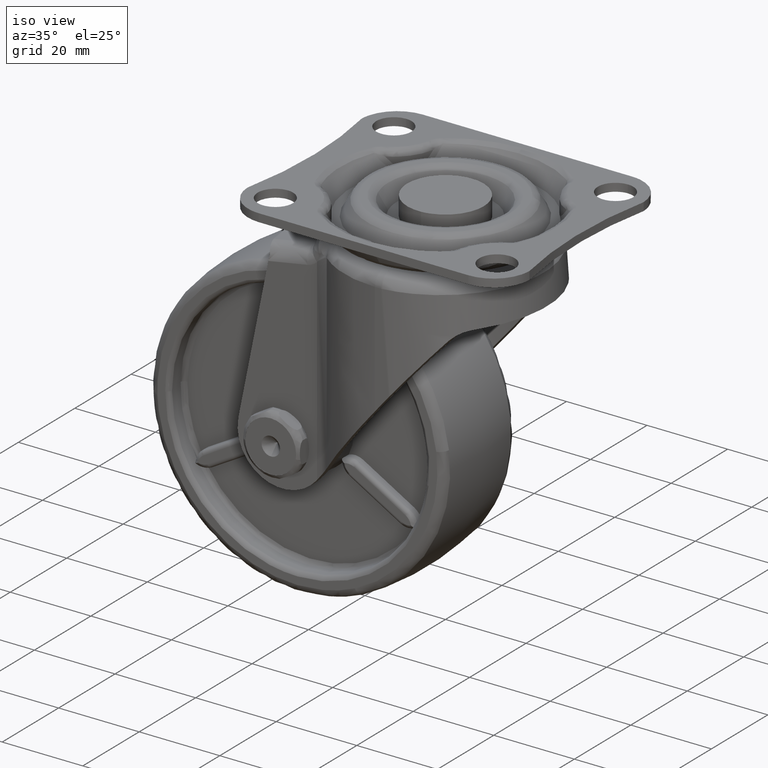
[diagram: clean part render]
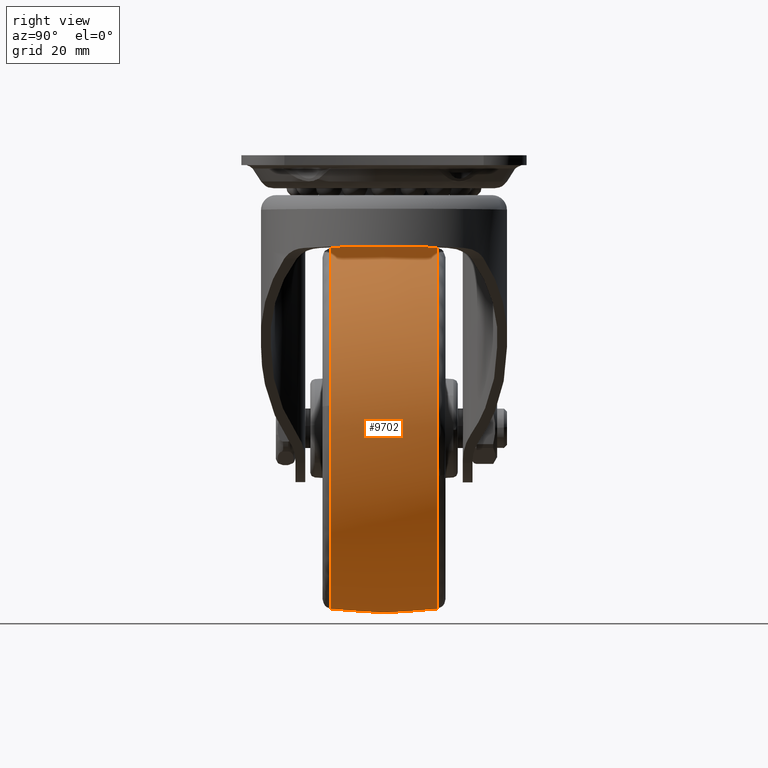
[diagram: tour spotlight — one face highlighted and labeled with its STEP entity id]
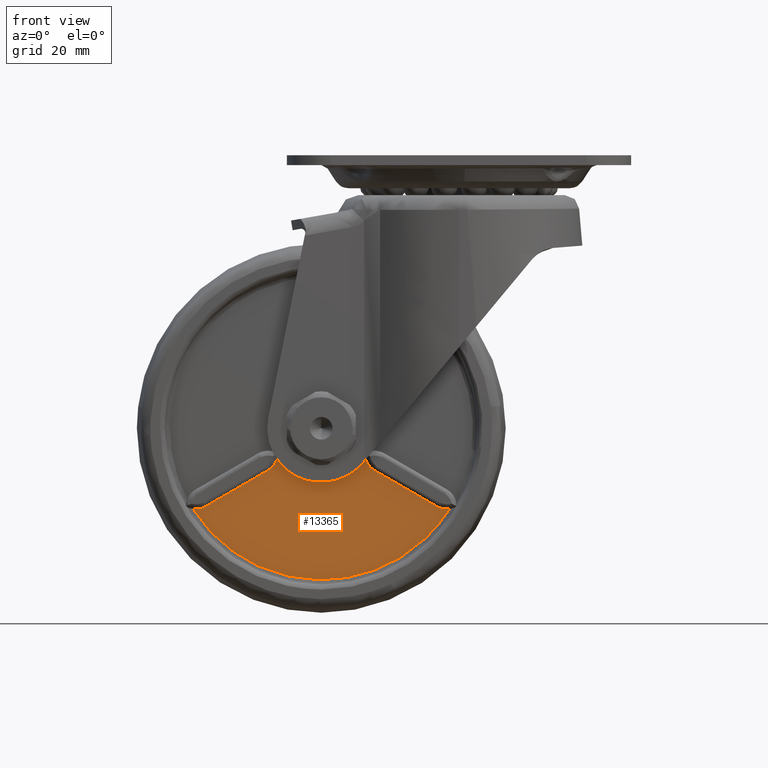
[diagram: tour spotlight — one face highlighted and labeled with its STEP entity id]
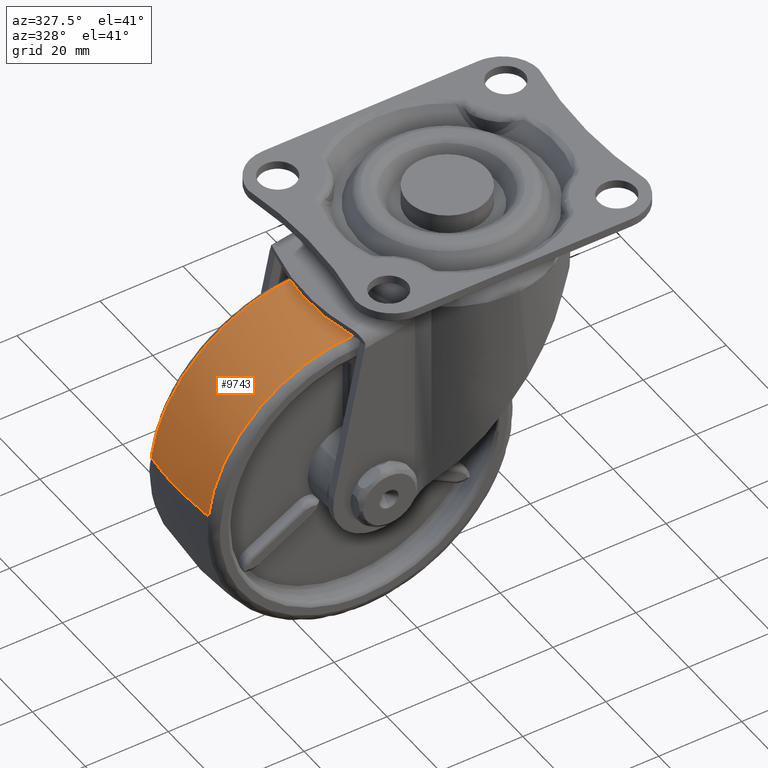
[diagram: tour spotlight — one face highlighted and labeled with its STEP entity id]
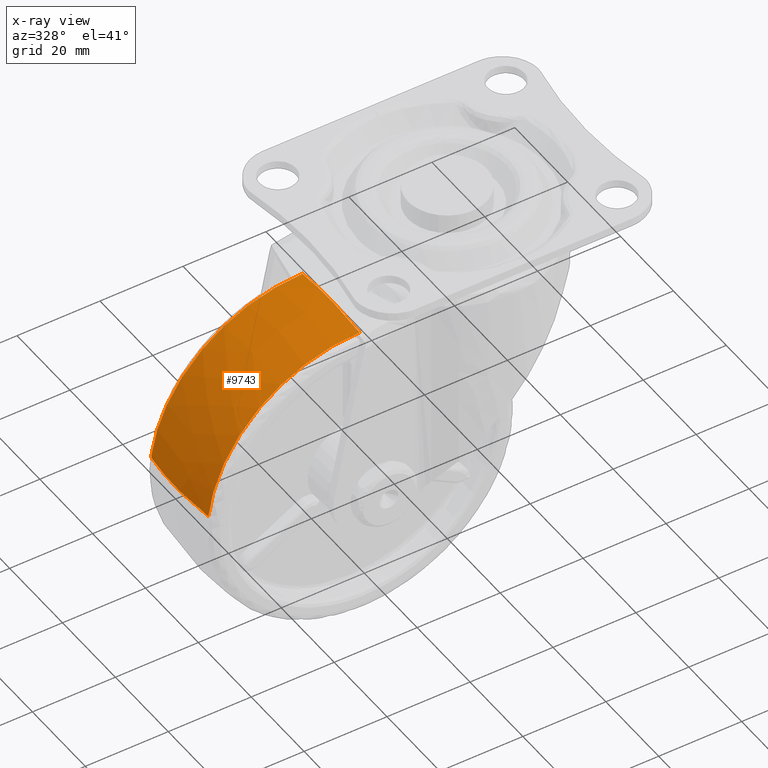
[diagram: x-ray of the same camera — body ghosted, this tour face saturated]
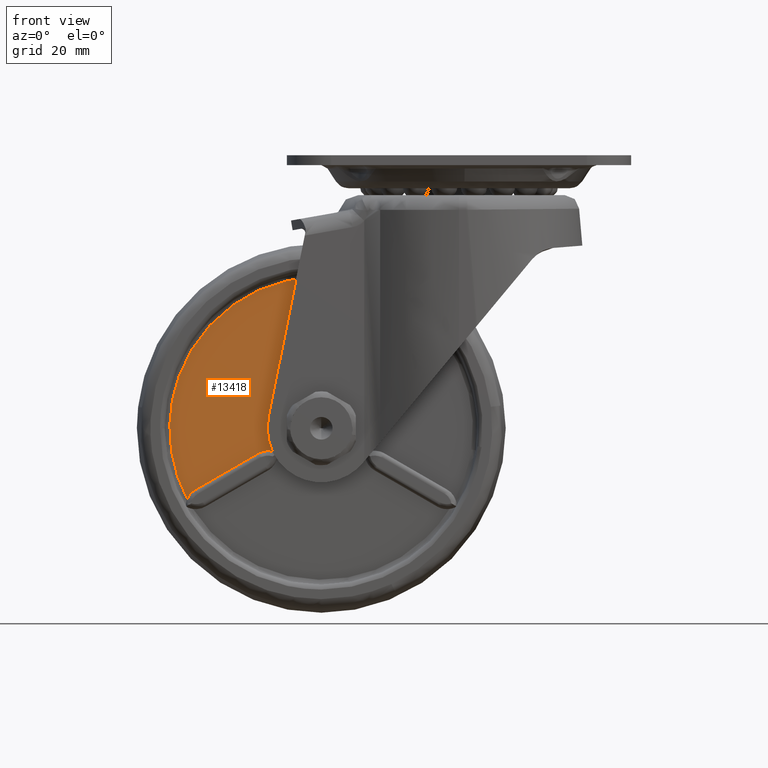
[diagram: tour spotlight — one face highlighted and labeled with its STEP entity id]
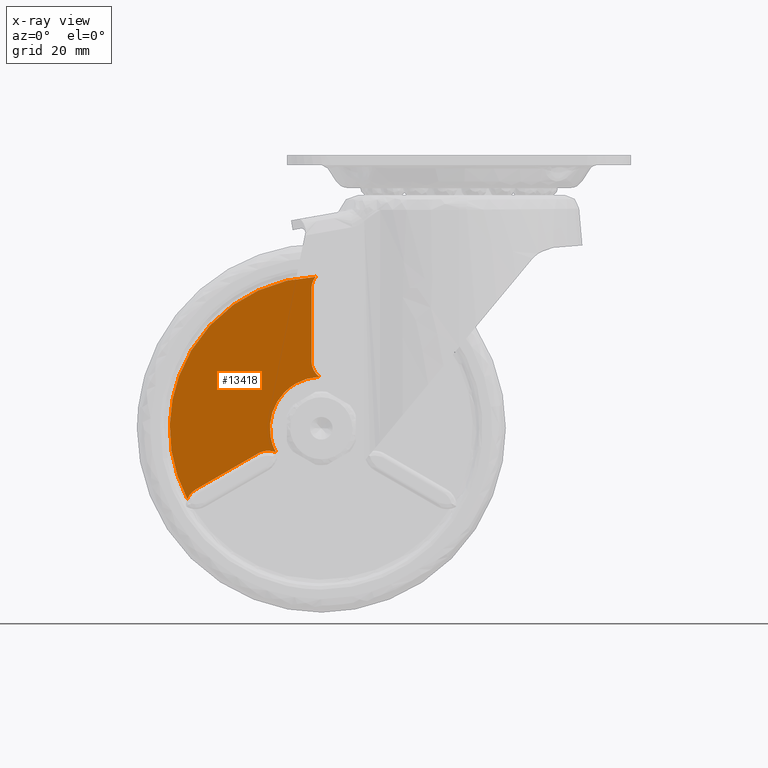
[diagram: x-ray of the same camera — body ghosted, this tour face saturated]
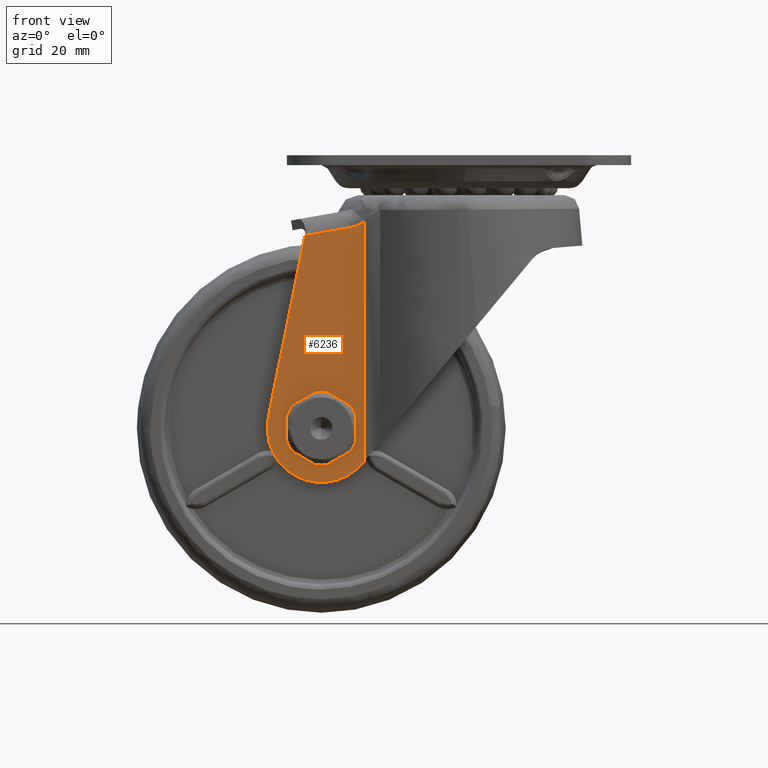
[diagram: tour spotlight — one face highlighted and labeled with its STEP entity id]
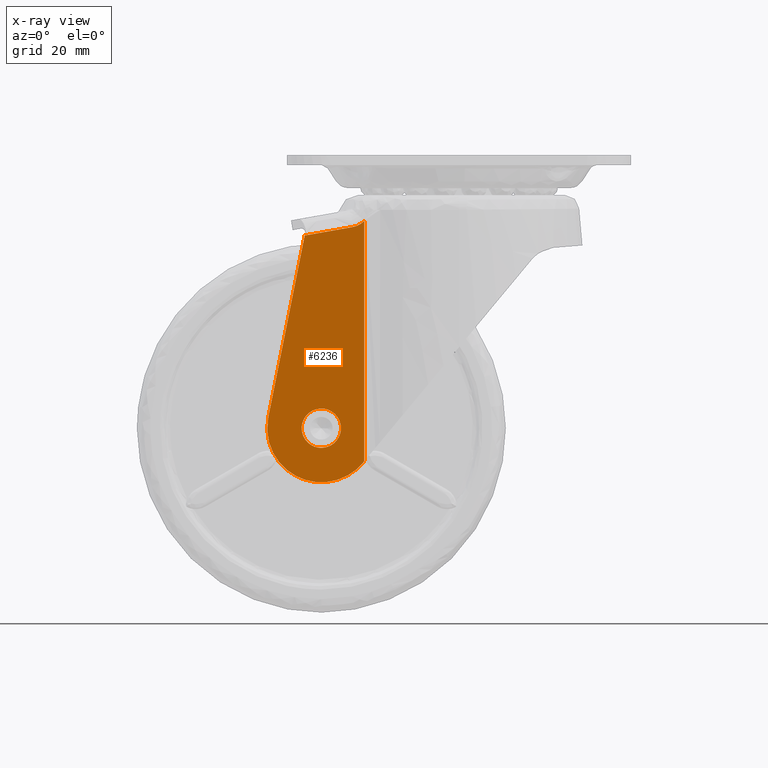
[diagram: x-ray of the same camera — body ghosted, this tour face saturated]
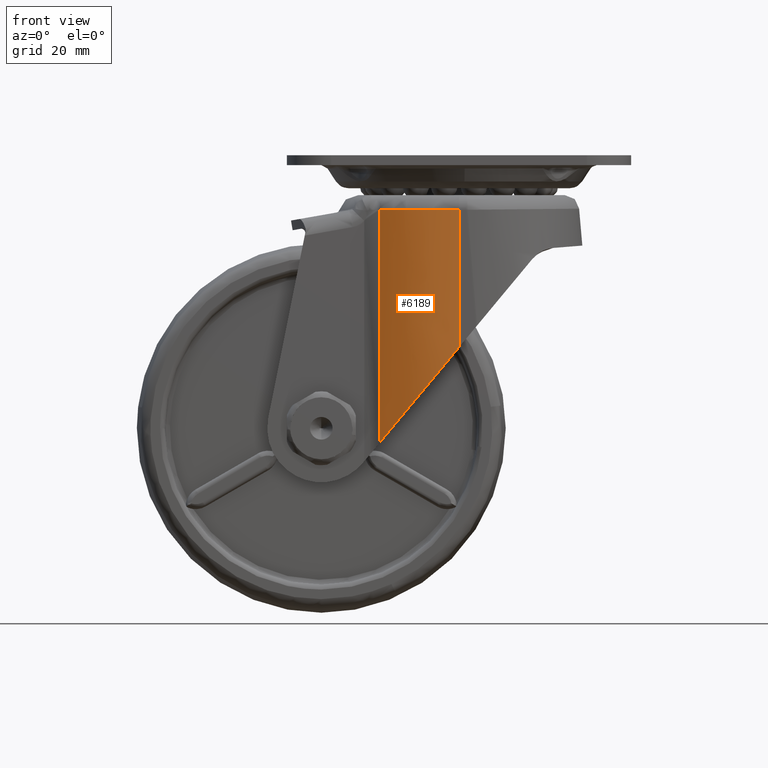
[diagram: tour spotlight — one face highlighted and labeled with its STEP entity id]
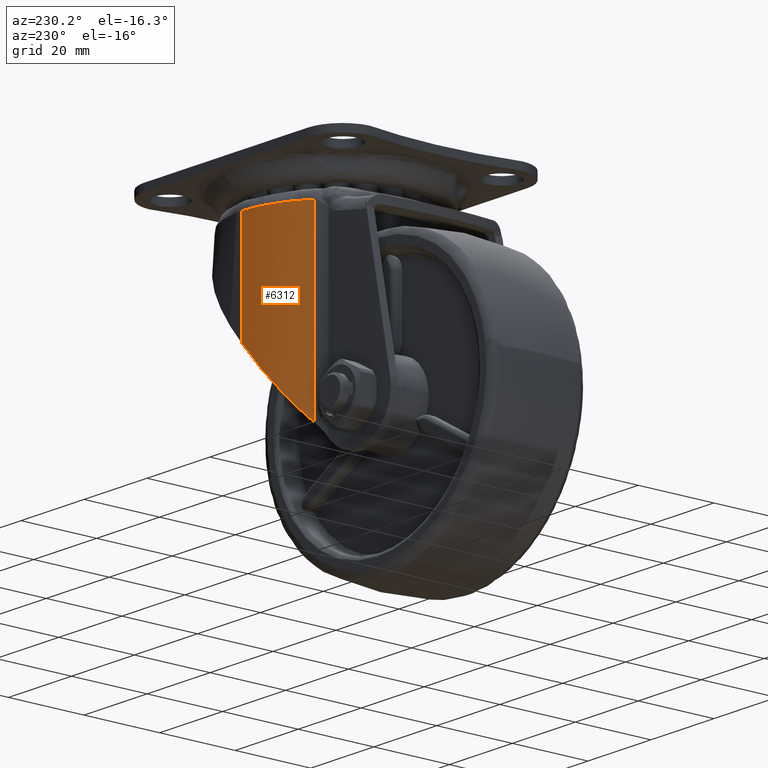
[diagram: tour spotlight — one face highlighted and labeled with its STEP entity id]
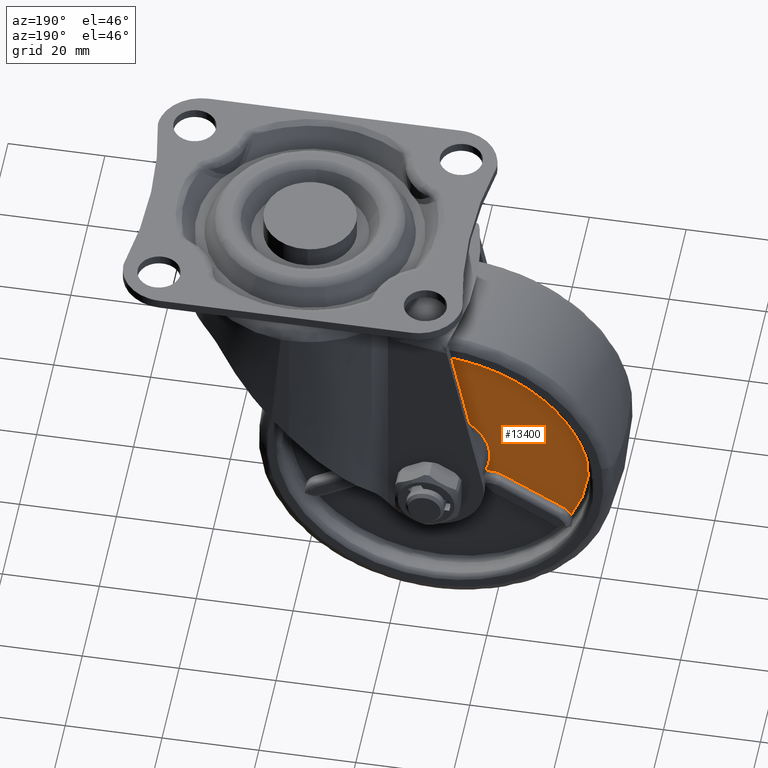
[diagram: tour spotlight — one face highlighted and labeled with its STEP entity id]
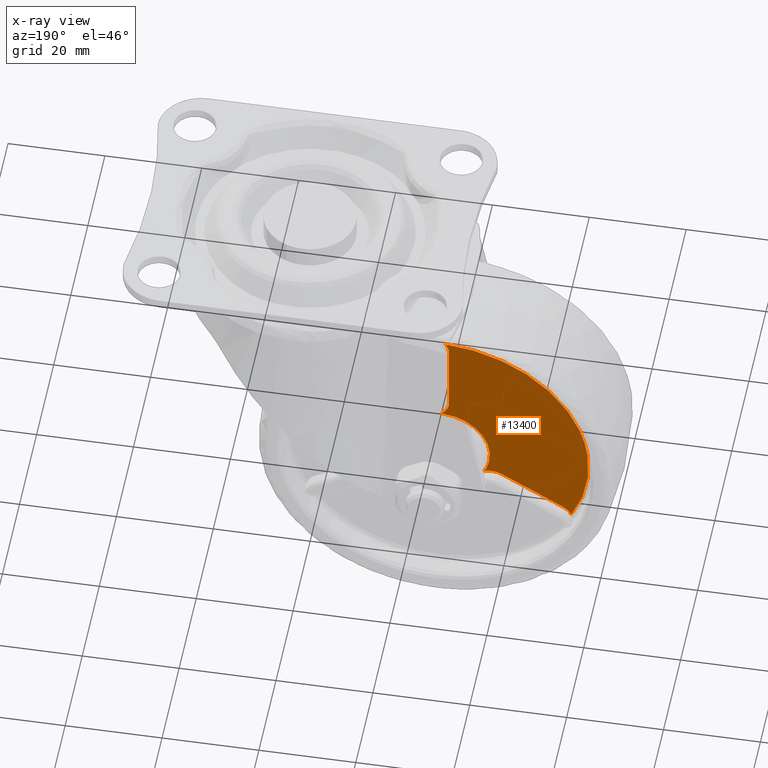
[diagram: x-ray of the same camera — body ghosted, this tour face saturated]
A machine part: a face-by-face anatomy tour. The part has 419 B-rep faces; the first image is the clean iso view, then the 8 largest visible faces are spotlighted one at a time (largest first), each with its STEP entity span.

Face 1 — right view, entity #9702. In plain terms, the highlighted face is a freeform B-spline surface patch.
Definition (entity closure, byte-faithful):
#8561=CARTESIAN_POINT('',(-28.0,10.787661823934330,-18.779885059837699));
#8562=VERTEX_POINT('',#8561);
#8576=CARTESIAN_POINT('',(7.423662727962565,10.787669111890191,-65.171157398174557));
#8577=VERTEX_POINT('',#8576);
#8578=CARTESIAN_POINT('',(7.423662727962565,10.787669111890194,-65.171157398174557));
#8579=CARTESIAN_POINT('',(8.720118062816804,10.787668356484938,-60.422478536353793));
#8580=CARTESIAN_POINT('',(8.720118144633542,10.787667575999100,-55.500004846555207));
#8581=CARTESIAN_POINT('',(8.720118754960904,10.787661753817915,-18.779884932603256));
#8582=CARTESIAN_POINT('',(-28.0,10.787661823934330,-18.779885059837699));
#8590=(BOUNDED_CURVE()B_SPLINE_CURVE(2,(#8578,#8579,#8580,#8581,#8582),.UNSPECIFIED.,.F.,.U.)B_SPLINE_CURVE_WITH_KNOTS((3,2,3),(0.205098070562559,0.250000000000000,0.500000000000000),.UNSPECIFIED.)CURVE()GEOMETRIC_REPRESENTATION_ITEM()RATIONAL_B_SPLINE_CURVE((0.913685079868250,0.947394117424533,1.0,0.707106781186547,1.0))REPRESENTATION_ITEM(''));
#8591=EDGE_CURVE('',#8577,#8562,#8590,.T.);
#8648=CARTESIAN_POINT('',(-28.0,10.787673651947360,-92.220125220997303));
#8649=VERTEX_POINT('',#8648);
#8650=CARTESIAN_POINT('',(-28.0,10.787673651947360,-92.220125220997303));
#8651=CARTESIAN_POINT('',(0.038919621405105,10.787673560122030,-92.220125054369490));
#8652=CARTESIAN_POINT('',(7.423662727962565,10.787669111890194,-65.171157398174557));
#8660=(BOUNDED_CURVE()B_SPLINE_CURVE(2,(#8650,#8651,#8652),.UNSPECIFIED.,.F.,.U.)B_SPLINE_CURVE_WITH_KNOTS((3,3),(0.0,0.205098070562559),.UNSPECIFIED.)CURVE()GEOMETRIC_REPRESENTATION_ITEM()RATIONAL_B_SPLINE_CURVE((1.0,0.759712663762014,0.913685079868250))REPRESENTATION_ITEM(''));
#8661=EDGE_CURVE('',#8649,#8577,#8660,.T.);
#8663=CARTESIAN_POINT('',(-64.474524907229906,10.787672373957840,-51.260170857312943));
#8664=VERTEX_POINT('',#8663);
#8665=CARTESIAN_POINT('',(-64.474524907229906,10.787672373957841,-51.260170857312943));
#8666=CARTESIAN_POINT('',(-64.720119400739947,10.787672406918595,-53.372975328489218));
#8667=CARTESIAN_POINT('',(-64.720119395396296,10.787672443932680,-55.500005979727518));
#8668=CARTESIAN_POINT('',(-64.720119303145836,10.787673082927435,-92.220125211448305));
#8669=CARTESIAN_POINT('',(-28.0,10.787673651947360,-92.220125220997303));
#8677=(BOUNDED_CURVE()B_SPLINE_CURVE(2,(#8665,#8666,#8667,#8668,#8669),.UNSPECIFIED.,.F.,.U.)B_SPLINE_CURVE_WITH_KNOTS((3,2,3),(0.730000116615001,0.750000000000000,1.0),.UNSPECIFIED.)CURVE()GEOMETRIC_REPRESENTATION_ITEM()RATIONAL_B_SPLINE_CURVE((0.956886347717381,0.976568679117896,1.0,0.707106781186547,1.0))REPRESENTATION_ITEM(''));
#8678=EDGE_CURVE('',#8664,#8649,#8677,.T.);
#8729=CARTESIAN_POINT('',(-12.897142011088370,-10.787670977160840,-88.970449859057325));
#8730=VERTEX_POINT('',#8729);
#8731=CARTESIAN_POINT('',(8.430567414111732,-10.787667752092540,-50.897755062108061));
#8732=VERTEX_POINT('',#8731);
#8733=CARTESIAN_POINT('',(-12.897142011088368,-10.787670977160841,-88.970449859057325));
#8734=CARTESIAN_POINT('',(8.720116186684651,-10.787670137770425,-79.216100885101184));
#8735=CARTESIAN_POINT('',(8.720116186684651,-10.787668116501679,-55.500005122126559));
#8736=CARTESIAN_POINT('',(8.720116186684651,-10.787667919605745,-53.189771667461763));
#8737=CARTESIAN_POINT('',(8.430567414111732,-10.787667752092531,-50.897755062108068));
#8745=(BOUNDED_CURVE()B_SPLINE_CURVE(2,(#8733,#8734,#8735,#8736,#8737),.UNSPECIFIED.,.F.,.U.)B_SPLINE_CURVE_WITH_KNOTS((3,2,3),(0.069848532171355,0.250000000000000,0.271678739019192),.UNSPECIFIED.)CURVE()GEOMETRIC_REPRESENTATION_ITEM()RATIONAL_B_SPLINE_CURVE((0.882061830132503,0.788939426854800,1.0,0.974601777395408,0.953608366305986))REPRESENTATION_ITEM(''));
#8746=EDGE_CURVE('',#8730,#8732,#8745,.T.);
#8831=CARTESIAN_POINT('',(-28.0,-10.787671246073501,-92.220122186684463));
#8832=VERTEX_POINT('',#8831);
#8833=CARTESIAN_POINT('',(-28.0,-10.787671246073501,-92.220122186684463));
#8834=CARTESIAN_POINT('',(-20.098956060484245,-10.787671246073499,-92.220122186684463));
#8835=CARTESIAN_POINT('',(-12.897142011088365,-10.787670977160841,-88.970449859057325));
#8843=(BOUNDED_CURVE()B_SPLINE_CURVE(2,(#8833,#8834,#8835),.UNSPECIFIED.,.F.,.U.)B_SPLINE_CURVE_WITH_KNOTS((3,3),(0.0,0.069848532171355),.UNSPECIFIED.)CURVE()GEOMETRIC_REPRESENTATION_ITEM()RATIONAL_B_SPLINE_CURVE((1.0,0.918167354331748,0.882061830132504))REPRESENTATION_ITEM(''));
#8844=EDGE_CURVE('',#8832,#8730,#8843,.T.);
#8893=CARTESIAN_POINT('',(-28.0,-10.787664986929860,-18.779888057568670));
#8894=VERTEX_POINT('',#8893);
#8895=CARTESIAN_POINT('',(8.430567414111732,-10.787667752092531,-50.897755062108068));
#8896=CARTESIAN_POINT('',(4.373138014819308,-10.787664986929855,-18.779888057568673));
#8897=CARTESIAN_POINT('',(-28.0,-10.787664986929860,-18.779888057568670));
#8905=(BOUNDED_CURVE()B_SPLINE_CURVE(2,(#8895,#8896,#8897),.UNSPECIFIED.,.F.,.U.)B_SPLINE_CURVE_WITH_KNOTS((3,3),(0.271678739019192,0.500000000000000),.UNSPECIFIED.)CURVE()GEOMETRIC_REPRESENTATION_ITEM()RATIONAL_B_SPLINE_CURVE((0.953608366305986,0.732505003791140,1.0))REPRESENTATION_ITEM(''));
#8906=EDGE_CURVE('',#8732,#8894,#8905,.T.);
#8908=CARTESIAN_POINT('',(-64.474523674530928,-10.787669266012189,-51.260170994281417));
#8909=VERTEX_POINT('',#8908);
#8923=CARTESIAN_POINT('',(-64.474523674530928,-10.787669266012188,-51.260170994281417));
#8924=CARTESIAN_POINT('',(-64.720118102510767,-10.787669317080150,-53.372975299298901));
#8925=CARTESIAN_POINT('',(-64.720118045554230,-10.787669374428150,-55.500005783922937));
#8926=CARTESIAN_POINT('',(-64.720117062281489,-10.787670364458807,-92.220122084904219));
#8927=CARTESIAN_POINT('',(-28.0,-10.787671246073501,-92.220122186684463));
#8935=(BOUNDED_CURVE()B_SPLINE_CURVE(2,(#8923,#8924,#8925,#8926,#8927),.UNSPECIFIED.,.F.,.U.)B_SPLINE_CURVE_WITH_KNOTS((3,2,3),(0.730000116586075,0.750000000000000,1.0),.UNSPECIFIED.)CURVE()GEOMETRIC_REPRESENTATION_ITEM()RATIONAL_B_SPLINE_CURVE((0.956886347660446,0.976568679084007,1.0,0.707106781186548,1.0))REPRESENTATION_ITEM(''));
#8936=EDGE_CURVE('',#8909,#8832,#8935,.T.);
#9610=CARTESIAN_POINT('',(-64.309422936630710,-11.875126293368886,-51.279338012871371));
#9611=CARTESIAN_POINT('',(-65.249186561240649,-5.975250702957141,-51.170098319010599));
#9612=CARTESIAN_POINT('',(-65.249186561240649,1.169933E-013,-51.170098319010592));
#9613=CARTESIAN_POINT('',(-65.249186561240634,5.975253034580994,-51.170098319010599));
#9614=CARTESIAN_POINT('',(-64.309422207839489,11.875130868750190,-51.279338097587278));
#9615=CARTESIAN_POINT('',(-64.553908576904533,-11.875126293368897,-53.382590991240534));
#9616=CARTESIAN_POINT('',(-65.499999999999986,-5.975250702957140,-53.327787872862480));
#9617=CARTESIAN_POINT('',(-65.500000000000000,1.169933E-013,-53.327787872862494));
#9618=CARTESIAN_POINT('',(-65.500000000000000,5.975253034580995,-53.327787872862487));
#9619=CARTESIAN_POINT('',(-64.553907843206076,11.875130868750189,-53.382591033740631));
#9620=CARTESIAN_POINT('',(-64.553908576904533,-11.875126293368890,-55.500005999999793));
#9621=CARTESIAN_POINT('',(-65.500000000000000,-5.975250702957140,-55.500005999999800));
#9622=CARTESIAN_POINT('',(-65.500000000000000,1.169933E-013,-55.500005999999800));
#9623=CARTESIAN_POINT('',(-65.500000000000000,5.975253034580994,-55.500005999999807));
#9624=CARTESIAN_POINT('',(-64.553907843206076,11.875130868750196,-55.500005999999800));
#9625=CARTESIAN_POINT('',(-64.553908576904533,-11.875126293368892,-92.053914576904319));
#9626=CARTESIAN_POINT('',(-65.499999999999986,-5.975250702957141,-93.000005999999786));
#9627=CARTESIAN_POINT('',(-65.500000000000000,1.169933E-013,-93.000005999999800));
#9628=CARTESIAN_POINT('',(-65.500000000000014,5.975253034580994,-93.000005999999800));
#9629=CARTESIAN_POINT('',(-64.553907843206062,11.875130868750192,-92.053913843205891));
#9630=CARTESIAN_POINT('',(-27.999999999999996,-11.875126293368890,-92.053914576904333));
#9631=CARTESIAN_POINT('',(-28.000000000000004,-5.975250702957140,-93.000005999999786));
#9632=CARTESIAN_POINT('',(-28.0,1.169933E-013,-93.000005999999800));
#9633=CARTESIAN_POINT('',(-28.000000000000004,5.975253034580994,-93.000005999999800));
#9634=CARTESIAN_POINT('',(-28.000000000000004,11.875130868750196,-92.053913843205876));
#9635=CARTESIAN_POINT('',(8.553908576904536,-11.875126293368892,-92.053914576904319));
#9636=CARTESIAN_POINT('',(9.499999999999996,-5.975250702957141,-93.000005999999786));
#9637=CARTESIAN_POINT('',(9.499999999999995,1.169933E-013,-93.000005999999800));
#9638=CARTESIAN_POINT('',(9.499999999999995,5.975253034580994,-93.000005999999800));
#9639=CARTESIAN_POINT('',(8.553907843206078,11.875130868750192,-92.053913843205891));
#9640=CARTESIAN_POINT('',(8.553908576904540,-11.875126293368890,-55.500005999999793));
#9641=CARTESIAN_POINT('',(9.499999999999998,-5.975250702957140,-55.500005999999800));
#9642=CARTESIAN_POINT('',(9.499999999999998,1.169933E-013,-55.500005999999800));
#9643=CARTESIAN_POINT('',(9.499999999999998,5.975253034580994,-55.500005999999807));
#9644=CARTESIAN_POINT('',(8.553907843206078,11.875130868750196,-55.500005999999800));
#9645=CARTESIAN_POINT('',(8.553908576904536,-11.875126293368892,-18.946097423095267));
#9646=CARTESIAN_POINT('',(9.499999999999996,-5.975250702957141,-18.000005999999811));
#9647=CARTESIAN_POINT('',(9.499999999999995,1.169933E-013,-18.000005999999811));
#9648=CARTESIAN_POINT('',(9.499999999999995,5.975253034580994,-18.000005999999818));
#9649=CARTESIAN_POINT('',(8.553907843206074,11.875130868750192,-18.946098156793735));
#9650=CARTESIAN_POINT('',(-27.999999999999996,-11.875126293368890,-18.946097423095264));
#9651=CARTESIAN_POINT('',(-28.000000000000004,-5.975250702957140,-18.000005999999804));
#9652=CARTESIAN_POINT('',(-28.0,1.169933E-013,-18.000005999999800));
#9653=CARTESIAN_POINT('',(-28.000000000000004,5.975253034580994,-18.000005999999800));
#9654=CARTESIAN_POINT('',(-28.000000000000004,11.875130868750196,-18.946098156793724));
#9662=(BOUNDED_SURFACE()B_SPLINE_SURFACE(2,2,((#9610,#9615,#9620,#9625,#9630,#9635,#9640,#9645,#9650),(#9611,#9616,#9621,#9626,#9631,#9636,#9641,#9646,#9651),(#9612,#9617,#9622,#9627,#9632,#9637,#9642,#9647,#9652),(#9613,#9618,#9623,#9628,#9633,#9638,#9643,#9648,#9653),(#9614,#9619,#9624,#9629,#9634,#9639,#9644,#9649,#9654)),.UNSPECIFIED.,.F.,.F.,.U.)B_SPLINE_SURFACE_WITH_KNOTS((3,2,3),(3,2,2,2,3),(0.0,12.128630864293550,24.257266362421980),(0.0,4.970561711536947,67.102596067501210,129.234630423465490,191.366664779429700),.UNSPECIFIED.)GEOMETRIC_REPRESENTATION_ITEM()RATIONAL_B_SPLINE_SURFACE(((0.923126195904401,0.942114200750951,0.964718967527182,0.682159323877755,0.964718967527182,0.682159323877755,0.964718967527182,0.682159323877755,0.964718967527182),(0.936885940051188,0.956156972385968,0.979098676634800,0.692327313699242,0.979098676634800,0.692327313699242,0.979098676634800,0.692327313699242,0.979098676634800),(0.956886126402807,0.976568547383107,1.0,0.707106781186548,1.0,0.707106781186548,1.0,0.707106781186548,1.0),(0.936885932409966,0.956156964587572,0.979098668649291,0.692327308052634,0.979098668649291,0.692327308052634,0.979098668649291,0.692327308052634,0.979098668649291),(0.923126185390374,0.942114190020658,0.964718956539431,0.682159316108242,0.964718956539431,0.682159316108242,0.964718956539431,0.682159316108242,0.964718956539431)))REPRESENTATION_ITEM('')SURFACE());
#9663=ORIENTED_EDGE('',*,*,#8678,.T.);
#9664=ORIENTED_EDGE('',*,*,#8661,.T.);
#9665=ORIENTED_EDGE('',*,*,#8591,.T.);
#9666=CARTESIAN_POINT('',(-28.0,-10.787664986929858,-18.779888057568670));
#9667=CARTESIAN_POINT('',(-28.000000000000007,-5.422022568358714,-18.000007867366858));
#9668=CARTESIAN_POINT('',(-28.0,0.000000180629348,-18.000007242746339));
#9669=CARTESIAN_POINT('',(-27.999999999999996,5.422021139668182,-18.000006618126026));
#9670=CARTESIAN_POINT('',(-28.0,10.787661823934332,-18.779885059837707));
#9678=(BOUNDED_CURVE()B_SPLINE_CURVE(2,(#9666,#9667,#9668,#9669,#9670),.UNSPECIFIED.,.F.,.U.)B_SPLINE_CURVE_WITH_KNOTS((3,2,3),(0.429080152062702,0.500000000000000,0.570919824969736),.UNSPECIFIED.)CURVE()GEOMETRIC_REPRESENTATION_ITEM()RATIONAL_B_SPLINE_CURVE((0.967384903683000,0.980997084017863,1.0,0.980997090172003,0.967384912499674))REPRESENTATION_ITEM(''));
#9679=EDGE_CURVE('',#8894,#8562,#9678,.T.);
#9680=ORIENTED_EDGE('',*,*,#9679,.F.);
#9681=ORIENTED_EDGE('',*,*,#8906,.F.);
#9682=ORIENTED_EDGE('',*,*,#8746,.F.);
#9683=ORIENTED_EDGE('',*,*,#8844,.F.);
#9684=ORIENTED_EDGE('',*,*,#8936,.F.);
#9685=CARTESIAN_POINT('',(-64.474523674530928,-10.787669266012191,-51.260170994281424));
#9686=CARTESIAN_POINT('',(-65.249188140239312,-5.422024770992517,-51.170122684701923));
#9687=CARTESIAN_POINT('',(-65.249188554049994,0.000000120419703,-51.170122638188765));
#9688=CARTESIAN_POINT('',(-65.249188967860803,5.422026468019357,-51.170122591675586));
#9689=CARTESIAN_POINT('',(-64.474524907229906,10.787672373957840,-51.260170857312936));
#9697=(BOUNDED_CURVE()B_SPLINE_CURVE(2,(#9685,#9686,#9687,#9688,#9689),.UNSPECIFIED.,.F.,.U.)B_SPLINE_CURVE_WITH_KNOTS((3,2,3),(0.429080124960685,0.500000000000000,0.570919893724244),.UNSPECIFIED.)CURVE()GEOMETRIC_REPRESENTATION_ITEM()RATIONAL_B_SPLINE_CURVE((0.925677175326231,0.938702484733337,0.956886118190660,0.938702479942580,0.925677168462796))REPRESENTATION_ITEM(''));
#9698=EDGE_CURVE('',#8909,#8664,#9697,.T.);
#9699=ORIENTED_EDGE('',*,*,#9698,.T.);
#9700=EDGE_LOOP('',(#9663,#9664,#9665,#9680,#9681,#9682,#9683,#9684,#9699));
#9701=FACE_OUTER_BOUND('',#9700,.T.);
#9702=ADVANCED_FACE('',(#9701),#9662,.T.);

Face 2 — front view, entity #13365. In plain terms, the highlighted face is a freeform B-spline surface patch.
Definition (entity closure, byte-faithful):
#7569=CARTESIAN_POINT('',(-36.858760972703898,-7.500000000000000,-61.049224878329312));
#7570=VERTEX_POINT('',#7569);
#7578=CARTESIAN_POINT('',(-20.536069802433602,-7.499999999998268,-62.818559281691897));
#7579=VERTEX_POINT('',#7578);
#7580=CARTESIAN_POINT('',(-36.858760972703777,-7.500000000000119,-61.049224878329220));
#7581=CARTESIAN_POINT('',(-33.786794321618153,-7.500000000000119,-65.953305772373454));
#7582=CARTESIAN_POINT('',(-28.0,-7.500000000000119,-65.953305772373454));
#7583=CARTESIAN_POINT('',(-23.609760017836610,-7.500000000000120,-65.953305772373469));
#7584=CARTESIAN_POINT('',(-20.536069802433598,-7.499999999998268,-62.818559281691890));
#7592=(BOUNDED_CURVE()B_SPLINE_CURVE(2,(#7580,#7581,#7582,#7583,#7584),.UNSPECIFIED.,.F.,.U.)B_SPLINE_CURVE_WITH_KNOTS((3,2,3),(0.0,0.500000000000000,0.891142754945505),.UNSPECIFIED.)CURVE()GEOMETRIC_REPRESENTATION_ITEM()RATIONAL_B_SPLINE_CURVE((1.0,0.874888022019497,1.0,0.902126712512049,0.957383134238540))REPRESENTATION_ITEM(''));
#7593=EDGE_CURVE('',#7570,#7579,#7592,.T.);
#7639=CARTESIAN_POINT('',(-19.141239027296351,-7.500000000000000,-61.049224878329312));
#7640=VERTEX_POINT('',#7639);
#7641=CARTESIAN_POINT('',(-20.536069802433598,-7.499999999998268,-62.818559281691897));
#7642=CARTESIAN_POINT('',(-19.742758946460075,-7.500000000000119,-62.009489971674512));
#7643=CARTESIAN_POINT('',(-19.141239027296290,-7.500000000000119,-61.049224878329348));
#7651=(BOUNDED_CURVE()B_SPLINE_CURVE(2,(#7641,#7642,#7643),.UNSPECIFIED.,.F.,.U.)B_SPLINE_CURVE_WITH_KNOTS((3,3),(0.891142754945505,1.0),.UNSPECIFIED.)CURVE()GEOMETRIC_REPRESENTATION_ITEM()RATIONAL_B_SPLINE_CURVE((0.957383134238540,0.972761309507448,1.0))REPRESENTATION_ITEM(''));
#7652=EDGE_CURVE('',#7579,#7640,#7651,.T.);
#9326=CARTESIAN_POINT('',(-1.929671203573410,-7.500000000000090,-71.900551565504799));
#9327=VERTEX_POINT('',#9326);
#9357=CARTESIAN_POINT('',(-54.070328796426907,-7.500000000000100,-71.900551565504799));
#9358=VERTEX_POINT('',#9357);
#9359=CARTESIAN_POINT('',(-54.070328796426757,-7.500000000000119,-71.900551565504713));
#9360=CARTESIAN_POINT('',(-45.011797390287704,-7.500000000000119,-86.300004999999800));
#9361=CARTESIAN_POINT('',(-28.0,-7.500000000000119,-86.300004999999800));
#9362=CARTESIAN_POINT('',(-10.988202609712404,-7.500000000000119,-86.300004999999800));
#9363=CARTESIAN_POINT('',(-1.929671203573340,-7.500000000000119,-71.900551565504870));
#9371=(BOUNDED_CURVE()B_SPLINE_CURVE(2,(#9359,#9360,#9361,#9362,#9363),.UNSPECIFIED.,.F.,.U.)B_SPLINE_CURVE_WITH_KNOTS((3,2,3),(0.0,0.500000000000000,1.0),.UNSPECIFIED.)CURVE()GEOMETRIC_REPRESENTATION_ITEM()RATIONAL_B_SPLINE_CURVE((1.0,0.875352861114236,1.0,0.875352861114236,1.0))REPRESENTATION_ITEM(''));
#9372=EDGE_CURVE('',#9358,#9327,#9371,.T.);
#12520=CARTESIAN_POINT('',(-4.460384112084801,-7.500000000000000,-71.400032611762796));
#12521=VERTEX_POINT('',#12520);
#12527=CARTESIAN_POINT('',(-4.460384112084831,-7.500000000000000,-71.400032611762853));
#12528=CARTESIAN_POINT('',(-3.280284022228915,-7.500000000000000,-72.081363440290474));
#12529=CARTESIAN_POINT('',(-1.929671203573403,-7.500000000000000,-71.900551565504855));
#12537=(BOUNDED_CURVE()B_SPLINE_CURVE(2,(#12527,#12528,#12529),.UNSPECIFIED.,.F.,.U.)CURVE()GEOMETRIC_REPRESENTATION_ITEM()QUASI_UNIFORM_CURVE()RATIONAL_B_SPLINE_CURVE((1.0,0.946578746526958,1.0))REPRESENTATION_ITEM(''));
#12538=EDGE_CURVE('',#12521,#9327,#12537,.T.);
#12558=CARTESIAN_POINT('',(-17.166533975120402,-7.500000000000000,-64.064136977162491));
#12559=VERTEX_POINT('',#12558);
#12567=CARTESIAN_POINT('',(-19.141239027296340,-7.500000000000000,-61.049224878329312));
#12568=CARTESIAN_POINT('',(-18.914566343705516,-7.500000000000001,-63.054910487622244));
#12569=CARTESIAN_POINT('',(-17.166533975120409,-7.500000000000000,-64.064136977162491));
#12577=(BOUNDED_CURVE()B_SPLINE_CURVE(2,(#12567,#12568,#12569),.UNSPECIFIED.,.F.,.U.)CURVE()GEOMETRIC_REPRESENTATION_ITEM()QUASI_UNIFORM_CURVE()RATIONAL_B_SPLINE_CURVE((1.0,0.892774271407524,1.0))REPRESENTATION_ITEM(''));
#12578=EDGE_CURVE('',#7640,#12559,#12577,.T.);
#12630=CARTESIAN_POINT('',(-17.166533975120402,-7.500000000000000,-64.064136977162491));
#12631=CARTESIAN_POINT('',(-4.460384112084801,-7.500000000000000,-71.400032611762796));
#12632=QUASI_UNIFORM_CURVE('',1,(#12630,#12631),.UNSPECIFIED.,.F.,.U.);
#12633=EDGE_CURVE('',#12559,#12521,#12632,.T.);
#12890=CARTESIAN_POINT('',(-51.539615925703302,-7.500000000000000,-71.400032633579599));
#12891=VERTEX_POINT('',#12890);
#12904=CARTESIAN_POINT('',(-54.070328796426907,-7.500000000000000,-71.900551565504813));
#12905=CARTESIAN_POINT('',(-52.719716001904892,-7.500000000000001,-72.081363437059608));
#12906=CARTESIAN_POINT('',(-51.539615925703288,-7.500000000000000,-71.400032633579627));
#12914=(BOUNDED_CURVE()B_SPLINE_CURVE(2,(#12904,#12905,#12906),.UNSPECIFIED.,.F.,.U.)CURVE()GEOMETRIC_REPRESENTATION_ITEM()QUASI_UNIFORM_CURVE()RATIONAL_B_SPLINE_CURVE((1.0,0.946578748285821,1.0))REPRESENTATION_ITEM(''));
#12915=EDGE_CURVE('',#9358,#12891,#12914,.T.);
#13015=CARTESIAN_POINT('',(-38.833466024879847,-7.500000000000000,-64.064136977162491));
#13016=VERTEX_POINT('',#13015);
#13022=CARTESIAN_POINT('',(-38.833466024879833,-7.500000000000000,-64.064136977162519));
#13023=CARTESIAN_POINT('',(-37.085433656294690,-7.500000000000001,-63.054910487622266));
#13024=CARTESIAN_POINT('',(-36.858760972703863,-7.500000000000000,-61.049224878329312));
#13032=(BOUNDED_CURVE()B_SPLINE_CURVE(2,(#13022,#13023,#13024),.UNSPECIFIED.,.F.,.U.)CURVE()GEOMETRIC_REPRESENTATION_ITEM()QUASI_UNIFORM_CURVE()RATIONAL_B_SPLINE_CURVE((1.0,0.892774271407521,1.0))REPRESENTATION_ITEM(''));
#13033=EDGE_CURVE('',#13016,#7570,#13032,.T.);
#13062=CARTESIAN_POINT('',(-51.539615925703302,-7.500000000000000,-71.400032633579599));
#13063=CARTESIAN_POINT('',(-38.833466024879847,-7.500000000000000,-64.064136977162491));
#13064=QUASI_UNIFORM_CURVE('',1,(#13062,#13063),.UNSPECIFIED.,.F.,.U.);
#13065=EDGE_CURVE('',#12891,#13016,#13064,.T.);
#13349=CARTESIAN_POINT('',(-56.674753563212853,-7.500000000000119,-59.787948550406298));
#13350=CARTESIAN_POINT('',(-56.674753563212853,-7.500000000000119,-87.561280199124965));
#13351=CARTESIAN_POINT('',(0.674755894081563,-7.500000000000119,-59.787948550406298));
#13352=CARTESIAN_POINT('',(0.674755894081563,-7.500000000000119,-87.561280199124965));
#13353=B_SPLINE_SURFACE_WITH_KNOTS('',1,1,((#13349,#13351),(#13350,#13352)),.UNSPECIFIED.,.F.,.F.,.U.,(2,2),(2,2),(0.0,27.773331648718671),(0.0,57.349509457294410),.UNSPECIFIED.);
#13354=ORIENTED_EDGE('',*,*,#12538,.F.);
#13355=ORIENTED_EDGE('',*,*,#12633,.F.);
#13356=ORIENTED_EDGE('',*,*,#12578,.F.);
#13357=ORIENTED_EDGE('',*,*,#7652,.F.);
#13358=ORIENTED_EDGE('',*,*,#7593,.F.);
#13359=ORIENTED_EDGE('',*,*,#13033,.F.);
#13360=ORIENTED_EDGE('',*,*,#13065,.F.);
#13361=ORIENTED_EDGE('',*,*,#12915,.F.);
#13362=ORIENTED_EDGE('',*,*,#9372,.T.);
#13363=EDGE_LOOP('',(#13354,#13355,#13356,#13357,#13358,#13359,#13360,#13361,#13362));
#13364=FACE_OUTER_BOUND('',#13363,.T.);
#13365=ADVANCED_FACE('',(#13364),#13353,.T.);

Face 3 — auxiliary view, entity #9743. An x-ray twin of the same camera follows (body ghosted, this face saturated) — the face is partly hidden behind the body. In plain terms, the highlighted face is a freeform B-spline surface patch.
Definition (entity closure, byte-faithful):
#8546=CARTESIAN_POINT('',(-64.303408495731475,10.787671924647521,-49.983704676103201));
#8547=VERTEX_POINT('',#8546);
#8561=CARTESIAN_POINT('',(-28.0,10.787661823934330,-18.779885059837699));
#8562=VERTEX_POINT('',#8561);
#8563=CARTESIAN_POINT('',(-28.0,10.787661823934330,-18.779885059837699));
#8564=CARTESIAN_POINT('',(-59.561990512295729,10.787666796358074,-18.779886002567732));
#8565=CARTESIAN_POINT('',(-64.303408495731475,10.787671924647519,-49.983704676103201));
#8573=(BOUNDED_CURVE()B_SPLINE_CURVE(2,(#8563,#8564,#8565),.UNSPECIFIED.,.F.,.U.)B_SPLINE_CURVE_WITH_KNOTS((3,3),(0.500000000000000,0.724102415502168),.UNSPECIFIED.)CURVE()GEOMETRIC_REPRESENTATION_ITEM()RATIONAL_B_SPLINE_CURVE((1.0,0.737447688718801,0.945604234667953))REPRESENTATION_ITEM(''));
#8574=EDGE_CURVE('',#8562,#8547,#8573,.T.);
#8663=CARTESIAN_POINT('',(-64.474524907229906,10.787672373957840,-51.260170857312943));
#8664=VERTEX_POINT('',#8663);
#8680=CARTESIAN_POINT('',(-64.303408495731475,10.787671924647519,-49.983704676103201));
#8681=CARTESIAN_POINT('',(-64.400160798061748,10.787672150892941,-50.620437159176703));
#8682=CARTESIAN_POINT('',(-64.474524907229906,10.787672373957841,-51.260170857312943));
#8690=(BOUNDED_CURVE()B_SPLINE_CURVE(2,(#8680,#8681,#8682),.UNSPECIFIED.,.F.,.U.)B_SPLINE_CURVE_WITH_KNOTS((3,3),(0.724102415502168,0.730000116615001),.UNSPECIFIED.)CURVE()GEOMETRIC_REPRESENTATION_ITEM()RATIONAL_B_SPLINE_CURVE((0.945604234667953,0.951082288485164,0.956886347717381))REPRESENTATION_ITEM(''));
#8691=EDGE_CURVE('',#8547,#8664,#8690,.T.);
#8893=CARTESIAN_POINT('',(-28.0,-10.787664986929860,-18.779888057568670));
#8894=VERTEX_POINT('',#8893);
#8908=CARTESIAN_POINT('',(-64.474523674530928,-10.787669266012189,-51.260170994281417));
#8909=VERTEX_POINT('',#8908);
#8910=CARTESIAN_POINT('',(-28.0,-10.787664986929860,-18.779888057568670));
#8911=CARTESIAN_POINT('',(-60.698982389631325,-10.787667126471023,-18.779888821145299));
#8912=CARTESIAN_POINT('',(-64.474523674530928,-10.787669266012188,-51.260170994281417));
#8920=(BOUNDED_CURVE()B_SPLINE_CURVE(2,(#8910,#8911,#8912),.UNSPECIFIED.,.F.,.U.)B_SPLINE_CURVE_WITH_KNOTS((3,3),(0.500000000000000,0.730000116586075),.UNSPECIFIED.)CURVE()GEOMETRIC_REPRESENTATION_ITEM()RATIONAL_B_SPLINE_CURVE((1.0,0.730538102102541,0.956886347660446))REPRESENTATION_ITEM(''));
#8921=EDGE_CURVE('',#8894,#8909,#8920,.T.);
#9666=CARTESIAN_POINT('',(-28.0,-10.787664986929858,-18.779888057568670));
#9667=CARTESIAN_POINT('',(-28.000000000000007,-5.422022568358714,-18.000007867366858));
#9668=CARTESIAN_POINT('',(-28.0,0.000000180629348,-18.000007242746339));
#9669=CARTESIAN_POINT('',(-27.999999999999996,5.422021139668182,-18.000006618126026));
#9670=CARTESIAN_POINT('',(-28.0,10.787661823934332,-18.779885059837707));
#9678=(BOUNDED_CURVE()B_SPLINE_CURVE(2,(#9666,#9667,#9668,#9669,#9670),.UNSPECIFIED.,.F.,.U.)B_SPLINE_CURVE_WITH_KNOTS((3,2,3),(0.429080152062702,0.500000000000000,0.570919824969736),.UNSPECIFIED.)CURVE()GEOMETRIC_REPRESENTATION_ITEM()RATIONAL_B_SPLINE_CURVE((0.967384903683000,0.980997084017863,1.0,0.980997090172003,0.967384912499674))REPRESENTATION_ITEM(''));
#9679=EDGE_CURVE('',#8894,#8562,#9678,.T.);
#9685=CARTESIAN_POINT('',(-64.474523674530928,-10.787669266012191,-51.260170994281424));
#9686=CARTESIAN_POINT('',(-65.249188140239312,-5.422024770992517,-51.170122684701923));
#9687=CARTESIAN_POINT('',(-65.249188554049994,0.000000120419703,-51.170122638188765));
#9688=CARTESIAN_POINT('',(-65.249188967860803,5.422026468019357,-51.170122591675586));
#9689=CARTESIAN_POINT('',(-64.474524907229906,10.787672373957840,-51.260170857312936));
#9697=(BOUNDED_CURVE()B_SPLINE_CURVE(2,(#9685,#9686,#9687,#9688,#9689),.UNSPECIFIED.,.F.,.U.)B_SPLINE_CURVE_WITH_KNOTS((3,2,3),(0.429080124960685,0.500000000000000,0.570919893724244),.UNSPECIFIED.)CURVE()GEOMETRIC_REPRESENTATION_ITEM()RATIONAL_B_SPLINE_CURVE((0.925677175326231,0.938702484733337,0.956886118190660,0.938702479942580,0.925677168462796))REPRESENTATION_ITEM(''));
#9698=EDGE_CURVE('',#8909,#8664,#9697,.T.);
#9703=CARTESIAN_POINT('',(-27.762841777263315,-11.875121032366954,-18.946096579452437));
#9704=CARTESIAN_POINT('',(-27.756703633247323,-5.975248021939756,-18.000005999999800));
#9705=CARTESIAN_POINT('',(-27.756703633247316,1.169933E-013,-18.000005999999807));
#9706=CARTESIAN_POINT('',(-27.756703633247323,5.975248021939979,-18.000005999999800));
#9707=CARTESIAN_POINT('',(-27.762841777263315,11.875121032367170,-18.946096579452437));
#9708=CARTESIAN_POINT('',(-27.881261340833468,-11.875121032366964,-18.946096579452441));
#9709=CARTESIAN_POINT('',(-27.878188139399327,-5.975248021939756,-18.000005999999804));
#9710=CARTESIAN_POINT('',(-27.878188139399338,1.169933E-013,-18.000005999999797));
#9711=CARTESIAN_POINT('',(-27.878188139399327,5.975248021939979,-18.000005999999804));
#9712=CARTESIAN_POINT('',(-27.881261340833468,11.875121032367170,-18.946096579452441));
#9713=CARTESIAN_POINT('',(-60.550952971777271,-11.875121032366959,-18.946096579452444));
#9714=CARTESIAN_POINT('',(-61.393438781010410,-5.975248021939756,-18.000005999999818));
#9715=CARTESIAN_POINT('',(-61.393438781010410,1.169933E-013,-18.000005999999811));
#9716=CARTESIAN_POINT('',(-61.393438781010389,5.975248021939979,-18.000005999999818));
#9717=CARTESIAN_POINT('',(-60.550952971777271,11.875121032367170,-18.946096579452444));
#9718=CARTESIAN_POINT('',(-64.323755271807528,-11.875121032366962,-51.402628418759186));
#9719=CARTESIAN_POINT('',(-65.263888987127260,-5.975248021939756,-51.296579834858782));
#9720=CARTESIAN_POINT('',(-65.263888987127245,1.169933E-013,-51.296579834858790));
#9721=CARTESIAN_POINT('',(-65.263888987127245,5.975248021939979,-51.296579834858790));
#9722=CARTESIAN_POINT('',(-64.323755271807514,11.875121032367167,-51.402628418759178));
#9723=CARTESIAN_POINT('',(-64.338053048780026,-11.875121032366964,-51.525628835063870));
#9724=CARTESIAN_POINT('',(-65.278556820061354,-5.975248021939756,-51.422763755663524));
#9725=CARTESIAN_POINT('',(-65.278556820061340,1.169933E-013,-51.422763755663524));
#9726=CARTESIAN_POINT('',(-65.278556820061354,5.975248021939978,-51.422763755663517));
#9727=CARTESIAN_POINT('',(-64.338053048780012,11.875121032367169,-51.525628835063863));
#9735=(BOUNDED_SURFACE()B_SPLINE_SURFACE(2,2,((#9703,#9708,#9713,#9718,#9723),(#9704,#9709,#9714,#9719,#9724),(#9705,#9710,#9715,#9720,#9725),(#9706,#9711,#9716,#9721,#9726),(#9707,#9712,#9717,#9722,#9727)),.UNSPECIFIED.,.F.,.F.,.U.)B_SPLINE_SURFACE_WITH_KNOTS((3,2,3),(3,1,1,3),(0.0,12.128625239098110,24.257250478196209),(0.0,0.285494005184705,57.384267368068052,57.669790323569053),.UNSPECIFIED.)GEOMETRIC_REPRESENTATION_ITEM()RATIONAL_B_SPLINE_SURFACE(((0.967318530176993,0.966018755169222,0.704764104599526,0.924218121792388,0.925310043513234),(0.981736983659389,0.980417834738162,0.715269029441988,0.937994138255354,0.939102335713764),(1.002694618919084,1.001347309459542,0.730538238691624,0.958017972899958,0.959149827609257),(0.981736983659389,0.980417834738162,0.715269029441988,0.937994138255354,0.939102335713764),(0.967318530176993,0.966018755169222,0.704764104599526,0.924218121792388,0.925310043513234)))REPRESENTATION_ITEM('')SURFACE());
#9736=ORIENTED_EDGE('',*,*,#8574,.T.);
#9737=ORIENTED_EDGE('',*,*,#8691,.T.);
#9738=ORIENTED_EDGE('',*,*,#9698,.F.);
#9739=ORIENTED_EDGE('',*,*,#8921,.F.);
#9740=ORIENTED_EDGE('',*,*,#9679,.T.);
#9741=EDGE_LOOP('',(#9736,#9737,#9738,#9739,#9740));
#9742=FACE_OUTER_BOUND('',#9741,.T.);
#9743=ADVANCED_FACE('',(#9742),#9735,.T.);

Face 4 — front view, entity #13418. An x-ray twin of the same camera follows (body ghosted, this face saturated) — the face is partly hidden behind the body. In plain terms, the highlighted face is a freeform B-spline surface patch.
Definition (entity closure, byte-faithful):
#7506=CARTESIAN_POINT('',(-35.463930197569717,-7.499999999998803,-48.181452718311121));
#7507=VERTEX_POINT('',#7506);
#7513=CARTESIAN_POINT('',(-37.235145006145501,-7.500000000000000,-60.397308609250693));
#7514=VERTEX_POINT('',#7513);
#7515=CARTESIAN_POINT('',(-35.463930197569717,-7.499999999998804,-48.181452718311121));
#7516=CARTESIAN_POINT('',(-36.390850042658244,-7.500000000000119,-49.126785047828022));
#7517=CARTESIAN_POINT('',(-37.052823156249701,-7.500000000000119,-50.273356113813009));
#7518=CARTESIAN_POINT('',(-39.946220317058717,-7.500000000000119,-55.284867002809804));
#7519=CARTESIAN_POINT('',(-37.235145006145402,-7.500000000000119,-60.397308609250643));
#7527=(BOUNDED_CURVE()B_SPLINE_CURVE(2,(#7515,#7516,#7517,#7518,#7519),.UNSPECIFIED.,.F.,.U.)B_SPLINE_CURVE_WITH_KNOTS((3,2,3),(0.373389903153090,0.500000000000000,1.0),.UNSPECIFIED.)CURVE()GEOMETRIC_REPRESENTATION_ITEM()RATIONAL_B_SPLINE_CURVE((0.952682718188999,0.968319120702361,1.0,0.874888022019500,1.0))REPRESENTATION_ITEM(''));
#7528=EDGE_CURVE('',#7507,#7514,#7527,.T.);
#7758=CARTESIAN_POINT('',(-28.376384033441749,-7.500000000000119,-45.053484512419502));
#7759=VERTEX_POINT('',#7758);
#7767=CARTESIAN_POINT('',(-28.376384033441749,-7.500000000000119,-45.053484512419487));
#7768=CARTESIAN_POINT('',(-32.544123503121256,-7.500000000000118,-45.203646515512787));
#7769=CARTESIAN_POINT('',(-35.463930197569717,-7.499999999998804,-48.181452718311121));
#7777=(BOUNDED_CURVE()B_SPLINE_CURVE(2,(#7767,#7768,#7769),.UNSPECIFIED.,.F.,.U.)B_SPLINE_CURVE_WITH_KNOTS((3,3),(0.0,0.373389903153090),.UNSPECIFIED.)CURVE()GEOMETRIC_REPRESENTATION_ITEM()RATIONAL_B_SPLINE_CURVE((1.0,0.906568901317139,0.952682718188999))REPRESENTATION_ITEM(''));
#7778=EDGE_CURVE('',#7759,#7507,#7777,.T.);
#9126=CARTESIAN_POINT('',(-58.790272046605963,-7.500000000000121,-54.725999085067492));
#9127=VERTEX_POINT('',#9126);
#9141=CARTESIAN_POINT('',(-29.168124697438301,-7.500000000000100,-24.722166194528800));
#9142=VERTEX_POINT('',#9141);
#9143=CARTESIAN_POINT('',(-29.168124697438291,-7.500000000000119,-24.722166194528789));
#9144=CARTESIAN_POINT('',(-46.167682875391506,-7.500000000000119,-25.367357795976933));
#9145=CARTESIAN_POINT('',(-54.673581570535298,-7.500000000000119,-40.100006499999793));
#9146=CARTESIAN_POINT('',(-58.593267849639872,-7.500000000000120,-46.889102285139508));
#9147=CARTESIAN_POINT('',(-58.790272046605963,-7.500000000000122,-54.725999085067492));
#9155=(BOUNDED_CURVE()B_SPLINE_CURVE(2,(#9143,#9144,#9145,#9146,#9147),.UNSPECIFIED.,.F.,.U.)B_SPLINE_CURVE_WITH_KNOTS((3,2,3),(0.0,0.500000000000000,0.747010807723800),.UNSPECIFIED.)CURVE()GEOMETRIC_REPRESENTATION_ITEM()RATIONAL_B_SPLINE_CURVE((1.0,0.875352861114238,1.0,0.938421619086734,0.937685340604307))REPRESENTATION_ITEM(''));
#9156=EDGE_CURVE('',#9142,#9127,#9155,.T.);
#9405=CARTESIAN_POINT('',(-55.238453493865102,-7.500000000000090,-69.877300239965805));
#9406=VERTEX_POINT('',#9405);
#9436=CARTESIAN_POINT('',(-58.790272046605963,-7.500000000000122,-54.725999085067492));
#9437=CARTESIAN_POINT('',(-58.992365247895208,-7.500000000000120,-62.765339600808034));
#9438=CARTESIAN_POINT('',(-55.238453493864952,-7.500000000000119,-69.877300239965720));
#9446=(BOUNDED_CURVE()B_SPLINE_CURVE(2,(#9436,#9437,#9438),.UNSPECIFIED.,.F.,.U.)B_SPLINE_CURVE_WITH_KNOTS((3,3),(0.747010807723801,1.0),.UNSPECIFIED.)CURVE()GEOMETRIC_REPRESENTATION_ITEM()RATIONAL_B_SPLINE_CURVE((0.937685340604307,0.936931242027504,1.0))REPRESENTATION_ITEM(''));
#9447=EDGE_CURVE('',#9127,#9406,#9446,.T.);
#12099=CARTESIAN_POINT('',(-30.000021975120401,-7.500000000000000,-41.835883722837004));
#12100=VERTEX_POINT('',#12099);
#12106=CARTESIAN_POINT('',(-30.000021975120411,-7.500000000000000,-41.835883722837004));
#12107=CARTESIAN_POINT('',(-30.000022381298930,-7.500000000000000,-43.854337405439367));
#12108=CARTESIAN_POINT('',(-28.376384033441749,-7.500000000000000,-45.053484512419487));
#12116=(BOUNDED_CURVE()B_SPLINE_CURVE(2,(#12106,#12107,#12108),.UNSPECIFIED.,.F.,.U.)CURVE()GEOMETRIC_REPRESENTATION_ITEM()QUASI_UNIFORM_CURVE()RATIONAL_B_SPLINE_CURVE((1.0,0.892774271407520,1.0))REPRESENTATION_ITEM(''));
#12117=EDGE_CURVE('',#12100,#7759,#12116,.T.);
#12136=CARTESIAN_POINT('',(-30.000019022677851,-7.500000000000000,-27.164087296222249));
#12137=VERTEX_POINT('',#12136);
#12150=CARTESIAN_POINT('',(-29.168124697438291,-7.500000000000000,-24.722166194528810));
#12151=CARTESIAN_POINT('',(-30.000018768771522,-7.499999999999999,-25.801425249483753));
#12152=CARTESIAN_POINT('',(-30.000019022677801,-7.500000000000000,-27.164087296222249));
#12160=(BOUNDED_CURVE()B_SPLINE_CURVE(2,(#12150,#12151,#12152),.UNSPECIFIED.,.F.,.U.)CURVE()GEOMETRIC_REPRESENTATION_ITEM()QUASI_UNIFORM_CURVE()RATIONAL_B_SPLINE_CURVE((1.0,0.946578748285823,1.0))REPRESENTATION_ITEM(''));
#12161=EDGE_CURVE('',#9142,#12137,#12160,.T.);
#12230=CARTESIAN_POINT('',(-30.000019022677851,-7.500000000000000,-27.164087296222249));
#12231=CARTESIAN_POINT('',(-30.000021975120401,-7.500000000000000,-41.835883722837004));
#12232=QUASI_UNIFORM_CURVE('',1,(#12230,#12231),.UNSPECIFIED.,.F.,.U.);
#12233=EDGE_CURVE('',#12137,#12100,#12232,.T.);
#12936=CARTESIAN_POINT('',(-53.539634910593200,-7.500000000000000,-67.935898048380693));
#12937=VERTEX_POINT('',#12936);
#12943=CARTESIAN_POINT('',(-53.539634910593179,-7.500000000000000,-67.935898048380722));
#12944=CARTESIAN_POINT('',(-54.719734761407537,-7.500000000000002,-68.617229290940443));
#12945=CARTESIAN_POINT('',(-55.238453493865052,-7.500000000000000,-69.877300239965834));
#12953=(BOUNDED_CURVE()B_SPLINE_CURVE(2,(#12943,#12944,#12945),.UNSPECIFIED.,.F.,.U.)CURVE()GEOMETRIC_REPRESENTATION_ITEM()QUASI_UNIFORM_CURVE()RATIONAL_B_SPLINE_CURVE((1.0,0.946578746526959,1.0))REPRESENTATION_ITEM(''));
#12954=EDGE_CURVE('',#12937,#9406,#12953,.T.);
#12974=CARTESIAN_POINT('',(-40.833488000000152,-7.500000000000000,-60.599997299999899));
#12975=VERTEX_POINT('',#12974);
#12983=CARTESIAN_POINT('',(-37.235145006145501,-7.500000000000000,-60.397308609250693));
#12984=CARTESIAN_POINT('',(-39.085456037593502,-7.500000000000000,-59.590770106937832));
#12985=CARTESIAN_POINT('',(-40.833488000000131,-7.500000000000000,-60.599997299999927));
#12993=(BOUNDED_CURVE()B_SPLINE_CURVE(2,(#12983,#12984,#12985),.UNSPECIFIED.,.F.,.U.)CURVE()GEOMETRIC_REPRESENTATION_ITEM()QUASI_UNIFORM_CURVE()RATIONAL_B_SPLINE_CURVE((1.0,0.892774271407519,1.0))REPRESENTATION_ITEM(''));
#12994=EDGE_CURVE('',#7514,#12975,#12993,.T.);
#13046=CARTESIAN_POINT('',(-40.833488000000152,-7.500000000000000,-60.599997299999899));
#13047=CARTESIAN_POINT('',(-53.539634910593200,-7.500000000000000,-67.935898048380693));
#13048=QUASI_UNIFORM_CURVE('',1,(#13046,#13047),.UNSPECIFIED.,.F.,.U.);
#13049=EDGE_CURVE('',#12975,#12937,#13048,.T.);
#13401=CARTESIAN_POINT('',(-60.318597320037647,-7.500000000000119,-22.466667235246259));
#13402=CARTESIAN_POINT('',(-60.318597320037647,-7.500000000000119,-72.132793547191326));
#13403=CARTESIAN_POINT('',(-26.856776473054541,-7.500000000000119,-22.466667235246259));
#13404=CARTESIAN_POINT('',(-26.856776473054541,-7.500000000000119,-72.132793547191326));
#13405=B_SPLINE_SURFACE_WITH_KNOTS('',1,1,((#13401,#13403),(#13402,#13404)),.UNSPECIFIED.,.F.,.F.,.U.,(2,2),(2,2),(0.0,49.666126311945057),(0.0,33.461820846983109),.UNSPECIFIED.);
#13406=ORIENTED_EDGE('',*,*,#12117,.F.);
#13407=ORIENTED_EDGE('',*,*,#12233,.F.);
#13408=ORIENTED_EDGE('',*,*,#12161,.F.);
#13409=ORIENTED_EDGE('',*,*,#9156,.T.);
#13410=ORIENTED_EDGE('',*,*,#9447,.T.);
#13411=ORIENTED_EDGE('',*,*,#12954,.F.);
#13412=ORIENTED_EDGE('',*,*,#13049,.F.);
#13413=ORIENTED_EDGE('',*,*,#12994,.F.);
#13414=ORIENTED_EDGE('',*,*,#7528,.F.);
#13415=ORIENTED_EDGE('',*,*,#7778,.F.);
#13416=EDGE_LOOP('',(#13406,#13407,#13408,#13409,#13410,#13411,#13412,#13413,#13414,#13415));
#13417=FACE_OUTER_BOUND('',#13416,.T.);
#13418=ADVANCED_FACE('',(#13417),#13405,.T.);

Face 5 — front view, entity #6236. An x-ray twin of the same camera follows (body ghosted, this face saturated) — the face is partly hidden behind the body. In plain terms, the highlighted face is a freeform B-spline surface patch.
Definition (entity closure, byte-faithful):
#506=CARTESIAN_POINT('',(-24.027963880585862,-18.0,-55.972142702739042));
#507=VERTEX_POINT('',#506);
#513=CARTESIAN_POINT('',(-28.0,-18.0,-51.500007999999802));
#514=VERTEX_POINT('',#513);
#515=CARTESIAN_POINT('',(-24.027963880585862,-18.0,-55.972142702739028));
#516=CARTESIAN_POINT('',(-24.000002000000002,-17.999999999999993,-55.736902360341787));
#517=CARTESIAN_POINT('',(-24.000001999999999,-18.0,-55.500005999999800));
#518=CARTESIAN_POINT('',(-24.000001999999999,-18.000000000000007,-51.500007999999809));
#519=CARTESIAN_POINT('',(-28.0,-18.0,-51.500007999999802));
#527=(BOUNDED_CURVE()B_SPLINE_CURVE(2,(#515,#516,#517,#518,#519),.UNSPECIFIED.,.F.,.U.)B_SPLINE_CURVE_WITH_KNOTS((3,2,3),(0.229562473500269,0.250000000000000,0.500000000000000),.UNSPECIFIED.)CURVE()GEOMETRIC_REPRESENTATION_ITEM()RATIONAL_B_SPLINE_CURVE((0.956026754157751,0.976055948315635,1.0,0.707106781186547,1.0))REPRESENTATION_ITEM(''));
#528=EDGE_CURVE('',#507,#514,#527,.T.);
#530=CARTESIAN_POINT('',(-31.992537197404939,-18.0,-55.255811963746041));
#531=VERTEX_POINT('',#530);
#532=CARTESIAN_POINT('',(-28.0,-18.0,-51.500007999999802));
#533=CARTESIAN_POINT('',(-31.762822385811411,-18.000000000000011,-51.500007999999802));
#534=CARTESIAN_POINT('',(-31.992537197404943,-18.000000000000004,-55.255811963746041));
#542=(BOUNDED_CURVE()B_SPLINE_CURVE(2,(#532,#533,#534),.UNSPECIFIED.,.F.,.U.)B_SPLINE_CURVE_WITH_KNOTS((3,3),(0.500000000000000,0.739332962223695),.UNSPECIFIED.)CURVE()GEOMETRIC_REPRESENTATION_ITEM()RATIONAL_B_SPLINE_CURVE((1.0,0.719603993304574,0.976072041634039))REPRESENTATION_ITEM(''));
#543=EDGE_CURVE('',#514,#531,#542,.T.);
#617=CARTESIAN_POINT('',(-28.0,-18.0,-59.500003999999798));
#618=VERTEX_POINT('',#617);
#619=CARTESIAN_POINT('',(-31.992537197404936,-18.0,-55.255811963746041));
#620=CARTESIAN_POINT('',(-31.999998000000001,-17.999999999999996,-55.377795007698964));
#621=CARTESIAN_POINT('',(-31.999998000000001,-18.0,-55.500005999999800));
#622=CARTESIAN_POINT('',(-31.999998000000001,-18.000000000000007,-59.500003999999805));
#623=CARTESIAN_POINT('',(-28.0,-18.0,-59.500003999999798));
#631=(BOUNDED_CURVE()B_SPLINE_CURVE(2,(#619,#620,#621,#622,#623),.UNSPECIFIED.,.F.,.U.)B_SPLINE_CURVE_WITH_KNOTS((3,2,3),(0.739332962223695,0.750000000000000,1.0),.UNSPECIFIED.)CURVE()GEOMETRIC_REPRESENTATION_ITEM()RATIONAL_B_SPLINE_CURVE((0.976072041634039,0.987502787881974,1.0,0.707106781186547,1.0))REPRESENTATION_ITEM(''));
#632=EDGE_CURVE('',#531,#618,#631,.T.);
#634=CARTESIAN_POINT('',(-28.0,-18.0,-59.500003999999798));
#635=CARTESIAN_POINT('',(-24.447303672869062,-18.0,-59.500003999999791));
#636=CARTESIAN_POINT('',(-24.027963880585862,-18.0,-55.972142702739028));
#644=(BOUNDED_CURVE()B_SPLINE_CURVE(2,(#634,#635,#636),.UNSPECIFIED.,.F.,.U.)B_SPLINE_CURVE_WITH_KNOTS((3,3),(0.0,0.229562473500269),.UNSPECIFIED.)CURVE()GEOMETRIC_REPRESENTATION_ITEM()RATIONAL_B_SPLINE_CURVE((1.0,0.731050832870913,0.956026754157751))REPRESENTATION_ITEM(''));
#645=EDGE_CURVE('',#618,#507,#644,.T.);
#4280=CARTESIAN_POINT('',(-19.261344709030698,-18.0,-13.353386034379520));
#4281=VERTEX_POINT('',#4280);
#4397=CARTESIAN_POINT('',(-21.684293381143348,-18.0,-14.619490965375460));
#4398=VERTEX_POINT('',#4397);
#4414=CARTESIAN_POINT('',(-19.261344709030698,-18.0,-13.353386034379520));
#4415=CARTESIAN_POINT('',(-19.424786917742949,-18.0,-13.519680463281309));
#4416=CARTESIAN_POINT('',(-19.600007818136469,-18.0,-13.671165488589571));
#4417=CARTESIAN_POINT('',(-19.879673605706380,-18.0,-13.877227010983381));
#4418=CARTESIAN_POINT('',(-19.975717030550751,-18.0,-13.942366705563080));
#4419=CARTESIAN_POINT('',(-20.173488502331740,-18.000000000000011,-14.065498793042631));
#4420=CARTESIAN_POINT('',(-20.274403303051329,-18.000000000000011,-14.122969876073279));
#4421=CARTESIAN_POINT('',(-20.581706532535950,-18.000000000000011,-14.282762782265641));
#4422=CARTESIAN_POINT('',(-20.793189863759348,-18.000000000000011,-14.372898345880211));
#4423=CARTESIAN_POINT('',(-21.120167282723919,-18.0,-14.483931826383680));
#4424=CARTESIAN_POINT('',(-21.230793234901189,-18.0,-14.516894661856060));
#4425=CARTESIAN_POINT('',(-21.455382349684740,-18.000000000000011,-14.574549574603321));
#4426=CARTESIAN_POINT('',(-21.569519175455341,-18.0,-14.599253167897039));
#4427=CARTESIAN_POINT('',(-21.684293381143348,-18.0,-14.619490965375460));
#4428=B_SPLINE_CURVE_WITH_KNOTS('',3,(#4414,#4415,#4416,#4417,#4418,#4419,#4420,#4421,#4422,#4423,#4424,#4425,#4426,#4427),.UNSPECIFIED.,.F.,.U.,(4,2,2,2,2,2,4),(0.0,0.250000000000002,0.375000000000003,0.500000000000004,0.750000000000002,0.875000000000001,1.0),.UNSPECIFIED.);
#4429=EDGE_CURVE('',#4281,#4398,#4428,.T.);
#4466=CARTESIAN_POINT('',(-31.364707003825249,-18.0,-16.326409689674250));
#4467=VERTEX_POINT('',#4466);
#4477=CARTESIAN_POINT('',(-21.684293381143348,-18.0,-14.619490965375460));
#4478=CARTESIAN_POINT('',(-23.982178109664620,-18.0,-15.024670208270770));
#4479=CARTESIAN_POINT('',(-26.280062841092299,-18.0,-15.429849434683019));
#4480=CARTESIAN_POINT('',(-28.577947574393502,-18.0,-15.835028650470051));
#4481=CARTESIAN_POINT('',(-29.506867383906819,-18.0,-15.998822331890670));
#4482=CARTESIAN_POINT('',(-30.435787193732871,-18.0,-16.162616011537779));
#4483=CARTESIAN_POINT('',(-31.364707003825249,-18.0,-16.326409689674250));
#4484=B_SPLINE_CURVE_WITH_KNOTS('',3,(#4477,#4478,#4479,#4480,#4481,#4482,#4483),.UNSPECIFIED.,.F.,.U.,(4,3,4),(0.0,0.007000000000000,0.009829749713882),.UNSPECIFIED.);
#4485=EDGE_CURVE('',#4398,#4467,#4484,.T.);
#5250=CARTESIAN_POINT('',(-19.261344709030698,-18.0,-62.195317013483702));
#5251=VERTEX_POINT('',#5250);
#5265=CARTESIAN_POINT('',(-19.540886000000000,-18.0,-62.531608999999889));
#5266=VERTEX_POINT('',#5265);
#5267=CARTESIAN_POINT('',(-19.261344709030698,-18.0,-62.195317013483702));
#5268=CARTESIAN_POINT('',(-19.540886000000000,-18.0,-62.531608999999889));
#5269=QUASI_UNIFORM_CURVE('',1,(#5267,#5268),.UNSPECIFIED.,.F.,.U.);
#5270=EDGE_CURVE('',#5251,#5266,#5269,.T.);
#5636=CARTESIAN_POINT('',(-38.785354261499151,-18.0,-53.337569075147613));
#5637=VERTEX_POINT('',#5636);
#5643=CARTESIAN_POINT('',(-38.785354261499151,-18.0,-53.337569075147613));
#5644=CARTESIAN_POINT('',(-31.364707003825249,-18.0,-16.326409689674250));
#5645=QUASI_UNIFORM_CURVE('',1,(#5643,#5644),.UNSPECIFIED.,.F.,.U.);
#5646=EDGE_CURVE('',#5637,#4467,#5645,.T.);
#5716=CARTESIAN_POINT('',(-38.785354261499151,-18.0,-53.337569075147613));
#5717=CARTESIAN_POINT('',(-40.468802112616963,-17.999999999999996,-61.733922018549116));
#5718=CARTESIAN_POINT('',(-32.741880210726450,-18.0,-65.425457035098489));
#5719=CARTESIAN_POINT('',(-25.014958308835929,-17.999999999999996,-69.116992051647841));
#5720=CARTESIAN_POINT('',(-19.540886000000000,-18.0,-62.531608999999889));
#5728=(BOUNDED_CURVE()B_SPLINE_CURVE(2,(#5716,#5717,#5718,#5719,#5720),.UNSPECIFIED.,.F.,.U.)B_SPLINE_CURVE_WITH_KNOTS((3,2,3),(0.0,0.500000000000000,1.0),.UNSPECIFIED.)CURVE()GEOMETRIC_REPRESENTATION_ITEM()RATIONAL_B_SPLINE_CURVE((1.0,0.789077574277785,1.0,0.789077574277785,1.0))REPRESENTATION_ITEM(''));
#5729=EDGE_CURVE('',#5637,#5266,#5728,.T.);
#6207=CARTESIAN_POINT('',(-19.261344709030698,-18.0,-62.195317013483702));
#6208=CARTESIAN_POINT('',(-19.261344709030698,-18.0,-13.353386034379520));
#6209=QUASI_UNIFORM_CURVE('',1,(#6207,#6208),.UNSPECIFIED.,.F.,.U.);
#6210=EDGE_CURVE('',#5251,#4281,#6209,.T.);
#6217=CARTESIAN_POINT('',(-39.983282298404653,-18.0,-10.698718084657230));
#6218=CARTESIAN_POINT('',(-39.983282298404653,-18.0,-69.154552510296284));
#6219=CARTESIAN_POINT('',(-18.275525098964561,-18.0,-10.698718084657230));
#6220=CARTESIAN_POINT('',(-18.275525098964561,-18.0,-69.154552510296284));
#6221=B_SPLINE_SURFACE_WITH_KNOTS('',1,1,((#6217,#6219),(#6218,#6220)),.UNSPECIFIED.,.F.,.F.,.U.,(2,2),(2,2),(0.0,58.455834425639061),(0.0,21.707757199440088),.UNSPECIFIED.);
#6222=ORIENTED_EDGE('',*,*,#6210,.T.);
#6223=ORIENTED_EDGE('',*,*,#4429,.T.);
#6224=ORIENTED_EDGE('',*,*,#4485,.T.);
#6225=ORIENTED_EDGE('',*,*,#5646,.F.);
#6226=ORIENTED_EDGE('',*,*,#5729,.T.);
#6227=ORIENTED_EDGE('',*,*,#5270,.F.);
#6228=EDGE_LOOP('',(#6222,#6223,#6224,#6225,#6226,#6227));
#6229=FACE_OUTER_BOUND('',#6228,.T.);
#6230=ORIENTED_EDGE('',*,*,#543,.F.);
#6231=ORIENTED_EDGE('',*,*,#528,.F.);
#6232=ORIENTED_EDGE('',*,*,#645,.F.);
#6233=ORIENTED_EDGE('',*,*,#632,.F.);
#6234=EDGE_LOOP('',(#6230,#6231,#6232,#6233));
#6235=FACE_BOUND('',#6234,.T.);
#6236=ADVANCED_FACE('',(#6229,#6235),#6221,.T.);

Face 6 — front view, entity #6189. In plain terms, the highlighted face is a freeform B-spline surface patch.
Definition (entity closure, byte-faithful):
#3029=CARTESIAN_POINT('',(1.530757E-015,-24.999990000000000,-11.106001000000020));
#3030=VERTEX_POINT('',#3029);
#3133=CARTESIAN_POINT('',(-16.051119520783899,-19.166665388888450,-11.106001000000020));
#3134=VERTEX_POINT('',#3133);
#3150=CARTESIAN_POINT('',(0.0,-24.999990000000000,-11.106001000000020));
#3151=CARTESIAN_POINT('',(-9.085538037126446,-24.999990000000004,-11.106001000000024));
#3152=CARTESIAN_POINT('',(-16.051119520783899,-19.166665388888450,-11.106001000000020));
#3160=(BOUNDED_CURVE()B_SPLINE_CURVE(2,(#3150,#3151,#3152),.UNSPECIFIED.,.F.,.U.)CURVE()GEOMETRIC_REPRESENTATION_ITEM()QUASI_UNIFORM_CURVE()RATIONAL_B_SPLINE_CURVE((1.0,0.939858213301960,1.0))REPRESENTATION_ITEM(''));
#3161=EDGE_CURVE('',#3030,#3134,#3160,.T.);
#5228=CARTESIAN_POINT('',(-5.551115E-014,-24.999990000000000,-39.023656566777092));
#5229=VERTEX_POINT('',#5228);
#5235=CARTESIAN_POINT('',(-16.051119520783899,-19.166665388888450,-58.333372318384399));
#5236=VERTEX_POINT('',#5235);
#5237=CARTESIAN_POINT('',(-16.051119520783939,-19.166665388888308,-58.333372318384370));
#5238=CARTESIAN_POINT('',(-9.085538037126515,-24.999990000000000,-49.953682769632280));
#5239=CARTESIAN_POINT('',(-2.679672E-014,-24.999990000000000,-39.023656566777127));
#5247=(BOUNDED_CURVE()B_SPLINE_CURVE(2,(#5237,#5238,#5239),.UNSPECIFIED.,.F.,.U.)CURVE()GEOMETRIC_REPRESENTATION_ITEM()QUASI_UNIFORM_CURVE()RATIONAL_B_SPLINE_CURVE((1.0,0.939858213301953,1.0))REPRESENTATION_ITEM(''));
#5248=EDGE_CURVE('',#5236,#5229,#5247,.T.);
#6157=CARTESIAN_POINT('',(-5.551115E-014,-24.999990000000000,-39.023656566777092));
#6158=CARTESIAN_POINT('',(1.530757E-015,-24.999990000000000,-11.106001000000020));
#6159=QUASI_UNIFORM_CURVE('',1,(#6157,#6158),.UNSPECIFIED.,.F.,.U.);
#6160=EDGE_CURVE('',#5229,#3030,#6159,.T.);
#6165=CARTESIAN_POINT('',(0.678638953961051,-24.990777282234870,-59.514056601344009));
#6166=CARTESIAN_POINT('',(0.678638953961051,-24.990777282234870,-9.895799609966424));
#6167=CARTESIAN_POINT('',(-9.281122992232648,-25.261240355573154,-59.514056601344009));
#6168=CARTESIAN_POINT('',(-9.281122992232648,-25.261240355573154,-9.895799609966423));
#6169=CARTESIAN_POINT('',(-16.696701741688500,-18.606978555079710,-59.514056601344016));
#6170=CARTESIAN_POINT('',(-16.696701741688500,-18.606978555079710,-9.895799609966424));
#6178=(BOUNDED_SURFACE()B_SPLINE_SURFACE(1,2,((#6165,#6167,#6169),(#6166,#6168,#6170)),.UNSPECIFIED.,.F.,.F.,.U.)B_SPLINE_SURFACE_WITH_KNOTS((2,2),(3,3),(0.0,49.618256991377592),(0.0,19.192740799854739),.UNSPECIFIED.)GEOMETRIC_REPRESENTATION_ITEM()RATIONAL_B_SPLINE_SURFACE(((1.0,0.924998040565188,0.991521549372535),(1.0,0.924998040565188,0.991521549372535)))REPRESENTATION_ITEM('')SURFACE());
#6179=ORIENTED_EDGE('',*,*,#6160,.T.);
#6180=ORIENTED_EDGE('',*,*,#3161,.T.);
#6181=CARTESIAN_POINT('',(-16.051119520783899,-19.166665388888450,-58.333372318384399));
#6182=CARTESIAN_POINT('',(-16.051119520783899,-19.166665388888450,-11.106001000000020));
#6183=QUASI_UNIFORM_CURVE('',1,(#6181,#6182),.UNSPECIFIED.,.F.,.U.);
#6184=EDGE_CURVE('',#5236,#3134,#6183,.T.);
#6185=ORIENTED_EDGE('',*,*,#6184,.F.);
#6186=ORIENTED_EDGE('',*,*,#5248,.T.);
#6187=EDGE_LOOP('',(#6179,#6180,#6185,#6186));
#6188=FACE_OUTER_BOUND('',#6187,.T.);
#6189=ADVANCED_FACE('',(#6188),#6178,.T.);

Face 7 — auxiliary view, entity #6312. In plain terms, the highlighted face is a freeform B-spline surface patch.
Definition (entity closure, byte-faithful):
#3239=CARTESIAN_POINT('',(1.530757E-015,24.999990000000000,-11.106001000000020));
#3240=VERTEX_POINT('',#3239);
#3351=CARTESIAN_POINT('',(-16.051119520783750,19.166665388888450,-11.106001000000020));
#3352=VERTEX_POINT('',#3351);
#3384=CARTESIAN_POINT('',(-16.051119520783750,19.166665388888450,-11.106001000000020));
#3385=CARTESIAN_POINT('',(-9.085538037126376,24.999990000000000,-11.106001000000026));
#3386=CARTESIAN_POINT('',(0.0,24.999990000000000,-11.106001000000020));
#3394=(BOUNDED_CURVE()B_SPLINE_CURVE(2,(#3384,#3385,#3386),.UNSPECIFIED.,.F.,.U.)CURVE()GEOMETRIC_REPRESENTATION_ITEM()QUASI_UNIFORM_CURVE()RATIONAL_B_SPLINE_CURVE((1.0,0.939858213301960,1.0))REPRESENTATION_ITEM(''));
#3395=EDGE_CURVE('',#3352,#3240,#3394,.T.);
#5351=CARTESIAN_POINT('',(-5.551115E-014,24.999990000000000,-39.023656566777198));
#5352=VERTEX_POINT('',#5351);
#5454=CARTESIAN_POINT('',(-16.051119520783750,19.166665388888450,-58.333372318384193));
#5455=VERTEX_POINT('',#5454);
#5469=CARTESIAN_POINT('',(1.530757E-015,24.999990000000000,-39.023656566777092));
#5470=CARTESIAN_POINT('',(-9.085538037126389,24.999990000000004,-49.953682769632131));
#5471=CARTESIAN_POINT('',(-16.051119520783779,19.166665388888450,-58.333372318384171));
#5479=(BOUNDED_CURVE()B_SPLINE_CURVE(2,(#5469,#5470,#5471),.UNSPECIFIED.,.F.,.U.)CURVE()GEOMETRIC_REPRESENTATION_ITEM()QUASI_UNIFORM_CURVE()RATIONAL_B_SPLINE_CURVE((1.0,0.939858213301961,1.0))REPRESENTATION_ITEM(''));
#5480=EDGE_CURVE('',#5352,#5455,#5479,.T.);
#6277=CARTESIAN_POINT('',(-16.051119520783750,19.166665388888450,-58.333372318384193));
#6278=CARTESIAN_POINT('',(-16.051119520783750,19.166665388888450,-11.106001000000020));
#6279=QUASI_UNIFORM_CURVE('',1,(#6277,#6278),.UNSPECIFIED.,.F.,.U.);
#6280=EDGE_CURVE('',#5455,#3352,#6279,.T.);
#6288=CARTESIAN_POINT('',(-16.565494579193000,18.723885530167799,-59.514056601343803));
#6289=CARTESIAN_POINT('',(-16.565494579193000,18.723885530167799,-9.895799609966424));
#6290=CARTESIAN_POINT('',(-9.103323501518396,25.325856811025208,-59.514056601343796));
#6291=CARTESIAN_POINT('',(-9.103323501518396,25.325856811025208,-9.895799609966423));
#6292=CARTESIAN_POINT('',(0.854291873360183,24.985389438534074,-59.514056601343789));
#6293=CARTESIAN_POINT('',(0.854291873360183,24.985389438534074,-9.895799609966424));
#6301=(BOUNDED_SURFACE()B_SPLINE_SURFACE(1,2,((#6288,#6290,#6292),(#6289,#6291,#6293)),.UNSPECIFIED.,.F.,.F.,.U.)B_SPLINE_SURFACE_WITH_KNOTS((2,2),(3,3),(0.0,49.618256991377372),(0.0,19.192742029122311),.UNSPECIFIED.)GEOMETRIC_REPRESENTATION_ITEM()RATIONAL_B_SPLINE_SURFACE(((1.0,0.924998035782531,0.991521557856557),(1.0,0.924998035782531,0.991521557856557)))REPRESENTATION_ITEM('')SURFACE());
#6302=ORIENTED_EDGE('',*,*,#6280,.T.);
#6303=ORIENTED_EDGE('',*,*,#3395,.T.);
#6304=CARTESIAN_POINT('',(-5.551115E-014,24.999990000000000,-39.023656566777198));
#6305=CARTESIAN_POINT('',(1.530757E-015,24.999990000000000,-11.106001000000020));
#6306=QUASI_UNIFORM_CURVE('',1,(#6304,#6305),.UNSPECIFIED.,.F.,.U.);
#6307=EDGE_CURVE('',#5352,#3240,#6306,.T.);
#6308=ORIENTED_EDGE('',*,*,#6307,.F.);
#6309=ORIENTED_EDGE('',*,*,#5480,.T.);
#6310=EDGE_LOOP('',(#6302,#6303,#6308,#6309));
#6311=FACE_OUTER_BOUND('',#6310,.T.);
#6312=ADVANCED_FACE('',(#6311),#6301,.T.);

Face 8 — auxiliary view, entity #13400. An x-ray twin of the same camera follows (body ghosted, this face saturated) — the face is partly hidden behind the body. In plain terms, the highlighted face is a freeform B-spline surface patch.
Definition (entity closure, byte-faithful):
#6832=CARTESIAN_POINT('',(-37.235145006145501,7.500000000000130,-60.397308609250693));
#6833=VERTEX_POINT('',#6832);
#6841=CARTESIAN_POINT('',(-28.376384033441749,7.500000000000130,-45.053484512419502));
#6842=VERTEX_POINT('',#6841);
#6843=CARTESIAN_POINT('',(-28.376384033441749,7.500000000000130,-45.053484512419487));
#6844=CARTESIAN_POINT('',(-34.159425995440692,7.500000000000128,-45.261845224816206));
#6845=CARTESIAN_POINT('',(-37.052823156249701,7.500000000000130,-50.273356113813009));
#6846=CARTESIAN_POINT('',(-39.946220317058717,7.500000000000128,-55.284867002809804));
#6847=CARTESIAN_POINT('',(-37.235145006145402,7.500000000000130,-60.397308609250643));
#6855=(BOUNDED_CURVE()B_SPLINE_CURVE(2,(#6843,#6844,#6845,#6846,#6847),.UNSPECIFIED.,.F.,.U.)B_SPLINE_CURVE_WITH_KNOTS((3,2,3),(0.0,0.500000000000000,1.0),.UNSPECIFIED.)CURVE()GEOMETRIC_REPRESENTATION_ITEM()RATIONAL_B_SPLINE_CURVE((1.0,0.874888022019500,1.0,0.874888022019500,1.0))REPRESENTATION_ITEM(''));
#6856=EDGE_CURVE('',#6842,#6833,#6855,.T.);
#7998=CARTESIAN_POINT('',(-58.593997494706322,7.500000000000132,-51.943707850660957));
#7999=VERTEX_POINT('',#7998);
#8013=CARTESIAN_POINT('',(-55.238453493865002,7.500000000000180,-69.877300239965805));
#8014=VERTEX_POINT('',#8013);
#8015=CARTESIAN_POINT('',(-58.593997494706308,7.500000000000132,-51.943707850660964));
#8016=CARTESIAN_POINT('',(-59.696790123045005,7.500000000000130,-61.430773869493215));
#8017=CARTESIAN_POINT('',(-55.238453493864931,7.500000000000130,-69.877300239965777));
#8025=(BOUNDED_CURVE()B_SPLINE_CURVE(2,(#8015,#8016,#8017),.UNSPECIFIED.,.F.,.U.)B_SPLINE_CURVE_WITH_KNOTS((3,3),(0.703051519156111,1.0),.UNSPECIFIED.)CURVE()GEOMETRIC_REPRESENTATION_ITEM()RATIONAL_B_SPLINE_CURVE((0.939874368312253,0.925972442932671,1.0))REPRESENTATION_ITEM(''));
#8026=EDGE_CURVE('',#7999,#8014,#8025,.T.);
#8277=CARTESIAN_POINT('',(-29.168124697438301,7.500000000000100,-24.722166194528800));
#8278=VERTEX_POINT('',#8277);
#8308=CARTESIAN_POINT('',(-29.168124697438291,7.500000000000130,-24.722166194528789));
#8309=CARTESIAN_POINT('',(-46.167682875391534,7.500000000000130,-25.367357795976940));
#8310=CARTESIAN_POINT('',(-54.673581570535312,7.500000000000130,-40.100006499999807));
#8311=CARTESIAN_POINT('',(-57.858507455700817,7.500000000000130,-45.616459951447759));
#8312=CARTESIAN_POINT('',(-58.593997494706308,7.500000000000132,-51.943707850660964));
#8320=(BOUNDED_CURVE()B_SPLINE_CURVE(2,(#8308,#8309,#8310,#8311,#8312),.UNSPECIFIED.,.F.,.U.)B_SPLINE_CURVE_WITH_KNOTS((3,2,3),(0.0,0.500000000000000,0.703051519156111),.UNSPECIFIED.)CURVE()GEOMETRIC_REPRESENTATION_ITEM()RATIONAL_B_SPLINE_CURVE((1.0,0.875352861114238,1.0,0.949380418181566,0.939874368312253))REPRESENTATION_ITEM(''));
#8321=EDGE_CURVE('',#8278,#7999,#8320,.T.);
#12243=CARTESIAN_POINT('',(-30.000019022677851,7.500000000000170,-27.164087296222249));
#12244=VERTEX_POINT('',#12243);
#12251=CARTESIAN_POINT('',(-30.000021975120401,7.500000000000170,-41.835883722837004));
#12252=VERTEX_POINT('',#12251);
#12258=CARTESIAN_POINT('',(-30.000021975120401,7.500000000000170,-41.835883722837004));
#12259=CARTESIAN_POINT('',(-30.000019022677851,7.500000000000170,-27.164087296222249));
#12260=QUASI_UNIFORM_CURVE('',1,(#12258,#12259),.UNSPECIFIED.,.F.,.U.);
#12261=EDGE_CURVE('',#12252,#12244,#12260,.T.);
#12349=CARTESIAN_POINT('',(-30.000019022677801,7.500000000000170,-27.164087296222249));
#12350=CARTESIAN_POINT('',(-30.000018768771518,7.500000000000170,-25.801425249483756));
#12351=CARTESIAN_POINT('',(-29.168124697438291,7.500000000000170,-24.722166194528810));
#12359=(BOUNDED_CURVE()B_SPLINE_CURVE(2,(#12349,#12350,#12351),.UNSPECIFIED.,.F.,.U.)CURVE()GEOMETRIC_REPRESENTATION_ITEM()QUASI_UNIFORM_CURVE()RATIONAL_B_SPLINE_CURVE((1.0,0.946578748285824,1.0))REPRESENTATION_ITEM(''));
#12360=EDGE_CURVE('',#12244,#8278,#12359,.T.);
#12383=CARTESIAN_POINT('',(-28.376384033441749,7.500000000000170,-45.053484512419487));
#12384=CARTESIAN_POINT('',(-30.000022381298926,7.500000000000170,-43.854337405439367));
#12385=CARTESIAN_POINT('',(-30.000021975120411,7.500000000000170,-41.835883722837004));
#12393=(BOUNDED_CURVE()B_SPLINE_CURVE(2,(#12383,#12384,#12385),.UNSPECIFIED.,.F.,.U.)CURVE()GEOMETRIC_REPRESENTATION_ITEM()QUASI_UNIFORM_CURVE()RATIONAL_B_SPLINE_CURVE((1.0,0.892774271407520,1.0))REPRESENTATION_ITEM(''));
#12394=EDGE_CURVE('',#6842,#12252,#12393,.T.);
#13084=CARTESIAN_POINT('',(-53.539634910593200,7.500000000000170,-67.935898048380693));
#13085=VERTEX_POINT('',#13084);
#13098=CARTESIAN_POINT('',(-55.238453493865030,7.500000000000170,-69.877300239965791));
#13099=CARTESIAN_POINT('',(-54.719734761407523,7.500000000000170,-68.617229290940443));
#13100=CARTESIAN_POINT('',(-53.539634910593179,7.500000000000170,-67.935898048380736));
#13108=(BOUNDED_CURVE()B_SPLINE_CURVE(2,(#13098,#13099,#13100),.UNSPECIFIED.,.F.,.U.)CURVE()GEOMETRIC_REPRESENTATION_ITEM()QUASI_UNIFORM_CURVE()RATIONAL_B_SPLINE_CURVE((1.0,0.946578746526961,1.0))REPRESENTATION_ITEM(''));
#13109=EDGE_CURVE('',#8014,#13085,#13108,.T.);
#13181=CARTESIAN_POINT('',(-40.833488000000152,7.500000000000170,-60.599997299999899));
#13182=VERTEX_POINT('',#13181);
#13190=CARTESIAN_POINT('',(-53.539634910593200,7.500000000000170,-67.935898048380693));
#13191=CARTESIAN_POINT('',(-40.833488000000152,7.500000000000170,-60.599997299999899));
#13192=QUASI_UNIFORM_CURVE('',1,(#13190,#13191),.UNSPECIFIED.,.F.,.U.);
#13193=EDGE_CURVE('',#13085,#13182,#13192,.T.);
#13248=CARTESIAN_POINT('',(-40.833488000000131,7.500000000000170,-60.599997299999927));
#13249=CARTESIAN_POINT('',(-39.085456037593502,7.500000000000170,-59.590770106937832));
#13250=CARTESIAN_POINT('',(-37.235145006145501,7.500000000000170,-60.397308609250693));
#13258=(BOUNDED_CURVE()B_SPLINE_CURVE(2,(#13248,#13249,#13250),.UNSPECIFIED.,.F.,.U.)CURVE()GEOMETRIC_REPRESENTATION_ITEM()QUASI_UNIFORM_CURVE()RATIONAL_B_SPLINE_CURVE((1.0,0.892774271407519,1.0))REPRESENTATION_ITEM(''));
#13259=EDGE_CURVE('',#13182,#6833,#13258,.T.);
#13384=CARTESIAN_POINT('',(-60.319322370415527,7.500000000000130,-72.132795283059153));
#13385=CARTESIAN_POINT('',(-60.319322370415527,7.500000000000130,-22.466666306815160));
#13386=CARTESIAN_POINT('',(-26.856741979713899,7.500000000000130,-72.132795283059153));
#13387=CARTESIAN_POINT('',(-26.856741979713899,7.500000000000130,-22.466666306815160));
#13388=B_SPLINE_SURFACE_WITH_KNOTS('',1,1,((#13384,#13386),(#13385,#13387)),.UNSPECIFIED.,.F.,.F.,.U.,(2,2),(2,2),(0.0,49.666128976244003),(0.0,33.462580390701632),.UNSPECIFIED.);
#13389=ORIENTED_EDGE('',*,*,#12394,.F.);
#13390=ORIENTED_EDGE('',*,*,#6856,.T.);
#13391=ORIENTED_EDGE('',*,*,#13259,.F.);
#13392=ORIENTED_EDGE('',*,*,#13193,.F.);
#13393=ORIENTED_EDGE('',*,*,#13109,.F.);
#13394=ORIENTED_EDGE('',*,*,#8026,.F.);
#13395=ORIENTED_EDGE('',*,*,#8321,.F.);
#13396=ORIENTED_EDGE('',*,*,#12360,.F.);
#13397=ORIENTED_EDGE('',*,*,#12261,.F.);
#13398=EDGE_LOOP('',(#13389,#13390,#13391,#13392,#13393,#13394,#13395,#13396,#13397));
#13399=FACE_OUTER_BOUND('',#13398,.T.);
#13400=ADVANCED_FACE('',(#13399),#13388,.T.);